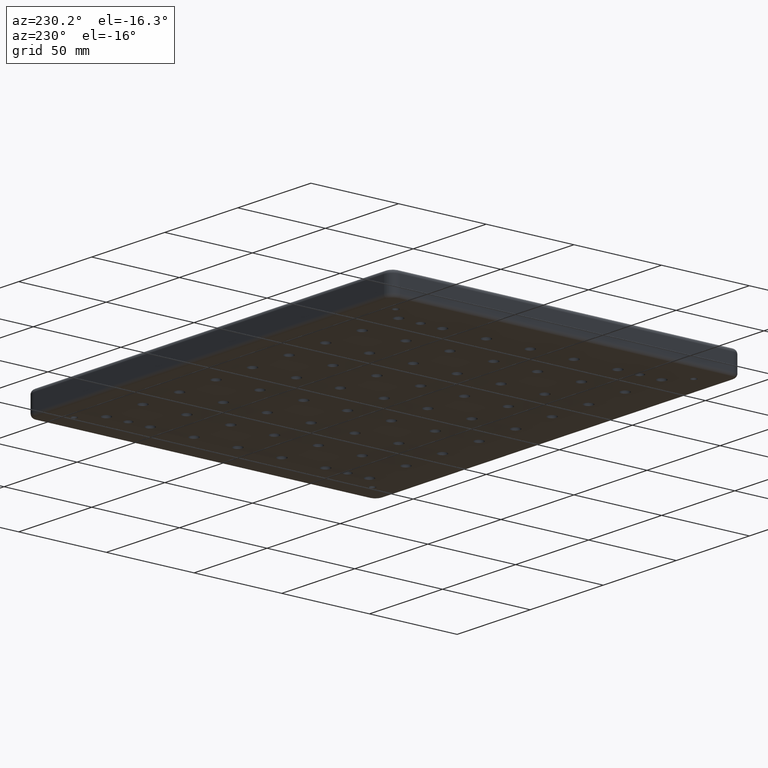
[diagram: clean part render]
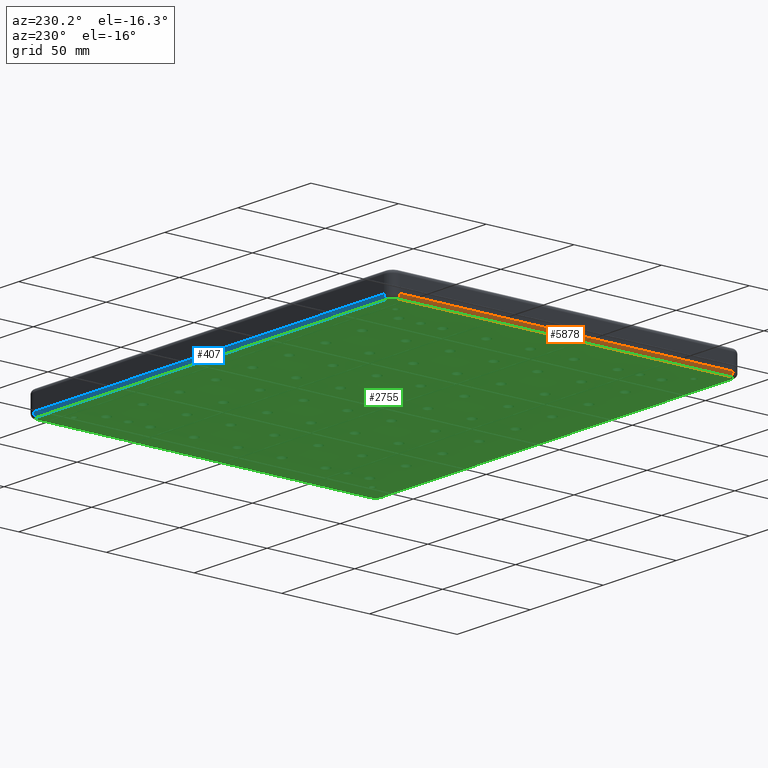
[diagram: same view with three faces highlighted in distinct colors, each labeled with its STEP entity id]
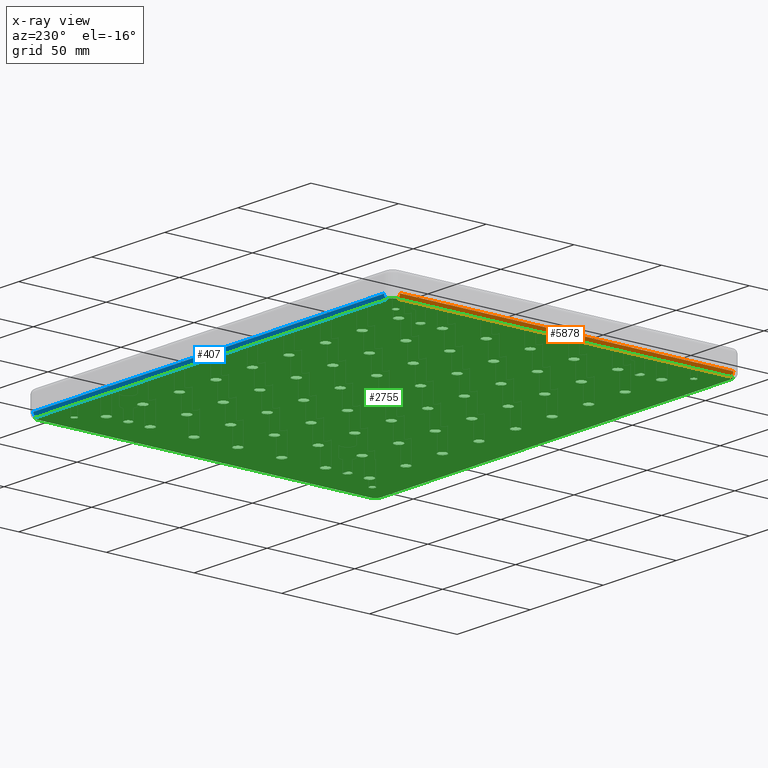
[diagram: x-ray of the same camera — body ghosted, the three highlighted faces saturated]
A machine part, auxiliary view with three faces highlighted in distinct colors.
The next image is the same camera in x-ray (body ghosted, the three faces saturated) — at least one of them is partly hidden behind the body in this view.
Their STEP definitions:

[orange] entity #5878 — the highlighted cylindrical surface (edge-blend (fillet) strip) has radius 2 mm, axis along (0, -1, 0).
#421 = CARTESIAN_POINT ( 'NONE',  ( -125.0000000000000000, -95.00000000000011369, -11.00000000000000000 ) ) ;
#540 = DIRECTION ( 'NONE',  ( 0.000000000000000000, 1.000000000000000000, 0.000000000000000000 ) ) ;
#826 = CARTESIAN_POINT ( 'NONE',  ( -123.0000000000000000, 95.00000000000011369, -13.00000000000000000 ) ) ;
#958 = VECTOR ( 'NONE', #3816, 1000.000000000000000 ) ;
#1067 = DIRECTION ( 'NONE',  ( 0.000000000000000000, 0.000000000000000000, -1.000000000000000000 ) ) ;
#1149 = EDGE_CURVE ( 'NONE', #4578, #2797, #5164, .T. ) ;
#1463 = DIRECTION ( 'NONE',  ( 0.000000000000000000, -1.000000000000000000, 0.000000000000000000 ) ) ;
#1552 = EDGE_CURVE ( 'NONE', #2014, #4578, #4270, .T. ) ;
#1553 = DIRECTION ( 'NONE',  ( 0.000000000000000000, -1.000000000000000000, 0.000000000000000000 ) ) ;
#1582 = CYLINDRICAL_SURFACE ( 'NONE', #4738, 2.000000000000000000 ) ;
#1818 = VECTOR ( 'NONE', #1463, 1000.000000000000000 ) ;
#1838 = ORIENTED_EDGE ( 'NONE', *, *, #5227, .F. ) ;
#2014 = VERTEX_POINT ( 'NONE', #2223 ) ;
#2223 = CARTESIAN_POINT ( 'NONE',  ( -123.0000000000000000, -95.00000000000011369, -13.00000000000000000 ) ) ;
#2266 = CARTESIAN_POINT ( 'NONE',  ( -125.0000000000000000, -95.00000000000011369, -11.00000000000000000 ) ) ;
#2393 = AXIS2_PLACEMENT_3D ( 'NONE', #3767, #540, #2960 ) ;
#2616 = ORIENTED_EDGE ( 'NONE', *, *, #4460, .T. ) ;
#2797 = VERTEX_POINT ( 'NONE', #3608 ) ;
#2908 = ORIENTED_EDGE ( 'NONE', *, *, #1552, .F. ) ;
#2960 = DIRECTION ( 'NONE',  ( 0.000000000000000000, 0.000000000000000000, 1.000000000000000000 ) ) ;
#3342 = AXIS2_PLACEMENT_3D ( 'NONE', #5958, #5990, #4524 ) ;
#3608 = CARTESIAN_POINT ( 'NONE',  ( -125.0000000000000000, 95.00000000000011369, -11.00000000000000000 ) ) ;
#3767 = CARTESIAN_POINT ( 'NONE',  ( -123.0000000000000000, 95.00000000000011369, -11.00000000000000000 ) ) ;
#3816 = DIRECTION ( 'NONE',  ( -0.000000000000000000, 1.000000000000000000, -0.000000000000000000 ) ) ;
#4270 = LINE ( 'NONE', #826, #958 ) ;
#4460 = EDGE_CURVE ( 'NONE', #2014, #6258, #5586, .T. ) ;
#4524 = DIRECTION ( 'NONE',  ( 0.000000000000000000, 0.000000000000000000, 1.000000000000000000 ) ) ;
#4564 = FACE_OUTER_BOUND ( 'NONE', #5631, .T. ) ;
#4578 = VERTEX_POINT ( 'NONE', #5131 ) ;
#4738 = AXIS2_PLACEMENT_3D ( 'NONE', #5461, #1553, #1067 ) ;
#5131 = CARTESIAN_POINT ( 'NONE',  ( -123.0000000000000000, 95.00000000000011369, -13.00000000000000000 ) ) ;
#5164 = CIRCLE ( 'NONE', #2393, 2.000000000000000000 ) ;
#5227 = EDGE_CURVE ( 'NONE', #2797, #6258, #5842, .T. ) ;
#5461 = CARTESIAN_POINT ( 'NONE',  ( -123.0000000000000000, -95.00000000000011369, -11.00000000000000000 ) ) ;
#5586 = CIRCLE ( 'NONE', #3342, 2.000000000000000000 ) ;
#5631 = EDGE_LOOP ( 'NONE', ( #2616, #1838, #5696, #2908 ) ) ;
#5696 = ORIENTED_EDGE ( 'NONE', *, *, #1149, .F. ) ;
#5842 = LINE ( 'NONE', #421, #1818 ) ;
#5878 = ADVANCED_FACE ( 'NONE', ( #4564 ), #1582, .T. ) ;
#5958 = CARTESIAN_POINT ( 'NONE',  ( -123.0000000000000000, -95.00000000000011369, -11.00000000000000000 ) ) ;
#5990 = DIRECTION ( 'NONE',  ( 0.000000000000000000, 1.000000000000000000, 0.000000000000000000 ) ) ;
#6258 = VERTEX_POINT ( 'NONE', #2266 ) ;

[blue] entity #407 — the highlighted cylindrical surface (edge-blend (fillet) strip) has radius 2 mm, axis along (-1, -0, 0).
#83 = ORIENTED_EDGE ( 'NONE', *, *, #1226, .T. ) ;
#349 = ORIENTED_EDGE ( 'NONE', *, *, #2693, .F. ) ;
#388 = LINE ( 'NONE', #2835, #2114 ) ;
#407 = ADVANCED_FACE ( 'NONE', ( #4644 ), #5574, .T. ) ;
#625 = DIRECTION ( 'NONE',  ( -1.000000000000000000, -1.156482317317870492E-16, 0.000000000000000000 ) ) ;
#646 = EDGE_CURVE ( 'NONE', #5261, #3094, #4228, .T. ) ;
#900 = CARTESIAN_POINT ( 'NONE',  ( -120.0000000000001137, 100.0000000000000000, -11.00000000000000000 ) ) ;
#1003 = CARTESIAN_POINT ( 'NONE',  ( -120.0000000000001137, 98.00000000000000000, -11.00000000000000000 ) ) ;
#1226 = EDGE_CURVE ( 'NONE', #1776, #2598, #3930, .T. ) ;
#1776 = VERTEX_POINT ( 'NONE', #3151 ) ;
#1845 = CARTESIAN_POINT ( 'NONE',  ( -120.0000000000001137, 100.0000000000000000, -11.00000000000000000 ) ) ;
#1874 = DIRECTION ( 'NONE',  ( 1.000000000000000000, 1.156482317317870492E-16, -0.000000000000000000 ) ) ;
#1999 = VECTOR ( 'NONE', #4453, 1000.000000000000000 ) ;
#2010 = AXIS2_PLACEMENT_3D ( 'NONE', #3150, #625, #2150 ) ;
#2059 = DIRECTION ( 'NONE',  ( 1.000000000000000000, -0.000000000000000000, 0.000000000000000000 ) ) ;
#2098 = EDGE_CURVE ( 'NONE', #3094, #2598, #4002, .T. ) ;
#2114 = VECTOR ( 'NONE', #1874, 1000.000000000000000 ) ;
#2150 = DIRECTION ( 'NONE',  ( 0.000000000000000000, -1.000000000000000000, 0.000000000000000000 ) ) ;
#2284 = AXIS2_PLACEMENT_3D ( 'NONE', #3868, #3239, #5156 ) ;
#2598 = VERTEX_POINT ( 'NONE', #1845 ) ;
#2693 = EDGE_CURVE ( 'NONE', #1776, #5261, #388, .T. ) ;
#2835 = CARTESIAN_POINT ( 'NONE',  ( -120.0000000000001137, 98.00000000000000000, -13.00000000000000000 ) ) ;
#2845 = CARTESIAN_POINT ( 'NONE',  ( 120.0000000000001137, 98.00000000000002842, -13.00000000000000000 ) ) ;
#3094 = VERTEX_POINT ( 'NONE', #3853 ) ;
#3150 = CARTESIAN_POINT ( 'NONE',  ( -120.0000000000001137, 98.00000000000000000, -11.00000000000000000 ) ) ;
#3151 = CARTESIAN_POINT ( 'NONE',  ( -120.0000000000001137, 98.00000000000000000, -13.00000000000000000 ) ) ;
#3239 = DIRECTION ( 'NONE',  ( 1.000000000000000000, -0.000000000000000000, 0.000000000000000000 ) ) ;
#3728 = AXIS2_PLACEMENT_3D ( 'NONE', #1003, #2059, #3918 ) ;
#3853 = CARTESIAN_POINT ( 'NONE',  ( 120.0000000000001137, 100.0000000000000284, -11.00000000000000000 ) ) ;
#3868 = CARTESIAN_POINT ( 'NONE',  ( 120.0000000000001137, 98.00000000000002842, -11.00000000000000000 ) ) ;
#3889 = ORIENTED_EDGE ( 'NONE', *, *, #2098, .F. ) ;
#3918 = DIRECTION ( 'NONE',  ( 0.000000000000000000, 0.000000000000000000, -1.000000000000000000 ) ) ;
#3930 = CIRCLE ( 'NONE', #3728, 2.000000000000000000 ) ;
#4002 = LINE ( 'NONE', #900, #1999 ) ;
#4228 = CIRCLE ( 'NONE', #2284, 2.000000000000000000 ) ;
#4453 = DIRECTION ( 'NONE',  ( -1.000000000000000000, -1.156482317317870492E-16, 0.000000000000000000 ) ) ;
#4522 = EDGE_LOOP ( 'NONE', ( #83, #3889, #5799, #349 ) ) ;
#4644 = FACE_OUTER_BOUND ( 'NONE', #4522, .T. ) ;
#5156 = DIRECTION ( 'NONE',  ( 0.000000000000000000, 0.000000000000000000, -1.000000000000000000 ) ) ;
#5261 = VERTEX_POINT ( 'NONE', #2845 ) ;
#5574 = CYLINDRICAL_SURFACE ( 'NONE', #2010, 2.000000000000001776 ) ;
#5799 = ORIENTED_EDGE ( 'NONE', *, *, #646, .F. ) ;

[green] entity #2755 — the highlighted planar face has unit normal (-0, 0, -1).
#1 = CARTESIAN_POINT ( 'NONE',  ( -27.49999999999999645, -75.00000000000001421, -13.00000000000000000 ) ) ;
#5 = CARTESIAN_POINT ( 'NONE',  ( -22.49999999999999289, 75.00000000000001421, -13.00000000000000000 ) ) ;
#9 = VERTEX_POINT ( 'NONE', #634 ) ;
#13 = EDGE_LOOP ( 'NONE', ( #6069, #4107 ) ) ;
#19 = CIRCLE ( 'NONE', #841, 2.500000000000002220 ) ;
#20 = CARTESIAN_POINT ( 'NONE',  ( 75.00000000000001421, -50.00000000000002842, -13.00000000000000000 ) ) ;
#21 = DIRECTION ( 'NONE',  ( 1.000000000000000000, 0.000000000000000000, 0.000000000000000000 ) ) ;
#22 = CARTESIAN_POINT ( 'NONE',  ( -27.50000000000000355, 24.99999999999998224, -13.00000000000000000 ) ) ;
#31 = DIRECTION ( 'NONE',  ( 1.000000000000000000, 0.000000000000000000, 0.000000000000000000 ) ) ;
#37 = EDGE_CURVE ( 'NONE', #3319, #5502, #770, .T. ) ;
#40 = DIRECTION ( 'NONE',  ( 1.000000000000000000, 0.000000000000000000, 0.000000000000000000 ) ) ;
#42 = AXIS2_PLACEMENT_3D ( 'NONE', #530, #5885, #5448 ) ;
#45 = AXIS2_PLACEMENT_3D ( 'NONE', #4696, #768, #830 ) ;
#50 = CARTESIAN_POINT ( 'NONE',  ( 100.0000000000000000, -75.00000000000004263, -13.00000000000000000 ) ) ;
#51 = CIRCLE ( 'NONE', #3549, 2.500000000000002220 ) ;
#55 = AXIS2_PLACEMENT_3D ( 'NONE', #893, #1859, #2788 ) ;
#56 = AXIS2_PLACEMENT_3D ( 'NONE', #3570, #5098, #1093 ) ;
#59 = EDGE_CURVE ( 'NONE', #6351, #5654, #4362, .T. ) ;
#61 = CARTESIAN_POINT ( 'NONE',  ( -109.9999999999999858, 85.00000000000002842, -13.00000000000000000 ) ) ;
#65 = AXIS2_PLACEMENT_3D ( 'NONE', #61, #4817, #3405 ) ;
#68 = FACE_BOUND ( 'NONE', #3525, .T. ) ;
#73 = CIRCLE ( 'NONE', #5612, 2.500000000000002220 ) ;
#75 = CARTESIAN_POINT ( 'NONE',  ( 24.99999999999999289, 49.99999999999997158, -13.00000000000000000 ) ) ;
#76 = EDGE_LOOP ( 'NONE', ( #1968, #4066 ) ) ;
#82 = VERTEX_POINT ( 'NONE', #5710 ) ;
#85 = DIRECTION ( 'NONE',  ( 1.000000000000000000, 0.000000000000000000, 0.000000000000000000 ) ) ;
#90 = CARTESIAN_POINT ( 'NONE',  ( 50.00000000000001421, -75.00000000000002842, -13.00000000000000000 ) ) ;
#96 = CARTESIAN_POINT ( 'NONE',  ( 27.49999999999999645, -25.00000000000002487, -13.00000000000000000 ) ) ;
#97 = DIRECTION ( 'NONE',  ( 1.000000000000000000, 0.000000000000000000, 0.000000000000000000 ) ) ;
#98 = CARTESIAN_POINT ( 'NONE',  ( 52.50000000000002132, -25.00000000000002487, -13.00000000000000000 ) ) ;
#99 = EDGE_CURVE ( 'NONE', #4010, #487, #5590, .T. ) ;
#106 = CARTESIAN_POINT ( 'NONE',  ( 52.50000000000002132, 49.99999999999997158, -13.00000000000000000 ) ) ;
#112 = CARTESIAN_POINT ( 'NONE',  ( 77.50000000000001421, -50.00000000000002842, -13.00000000000000000 ) ) ;
#119 = DIRECTION ( 'NONE',  ( -0.000000000000000000, -0.000000000000000000, 1.000000000000000000 ) ) ;
#126 = FACE_BOUND ( 'NONE', #908, .T. ) ;
#129 = VERTEX_POINT ( 'NONE', #5763 ) ;
#130 = CARTESIAN_POINT ( 'NONE',  ( 0.000000000000000000, -50.00000000000002132, -13.00000000000000000 ) ) ;
#135 = EDGE_CURVE ( 'NONE', #4246, #4485, #6305, .T. ) ;
#136 = DIRECTION ( 'NONE',  ( 1.000000000000000000, 0.000000000000000000, 0.000000000000000000 ) ) ;
#145 = CIRCLE ( 'NONE', #3648, 2.500000000000002220 ) ;
#148 = DIRECTION ( 'NONE',  ( 1.000000000000000000, 0.000000000000000000, 0.000000000000000000 ) ) ;
#149 = VERTEX_POINT ( 'NONE', #379 ) ;
#150 = CIRCLE ( 'NONE', #655, 2.500000000000002220 ) ;
#154 = AXIS2_PLACEMENT_3D ( 'NONE', #2342, #1320, #797 ) ;
#155 = CIRCLE ( 'NONE', #3751, 2.500000000000002220 ) ;
#156 = DIRECTION ( 'NONE',  ( 1.000000000000000000, 0.000000000000000000, 0.000000000000000000 ) ) ;
#160 = FACE_BOUND ( 'NONE', #548, .T. ) ;
#162 = AXIS2_PLACEMENT_3D ( 'NONE', #2555, #1589, #5110 ) ;
#168 = DIRECTION ( 'NONE',  ( 1.000000000000000000, 0.000000000000000000, 0.000000000000000000 ) ) ;
#172 = DIRECTION ( 'NONE',  ( -0.000000000000000000, -0.000000000000000000, 1.000000000000000000 ) ) ;
#175 = EDGE_CURVE ( 'NONE', #6300, #4413, #661, .T. ) ;
#176 = EDGE_CURVE ( 'NONE', #4553, #4808, #4055, .T. ) ;
#177 = ORIENTED_EDGE ( 'NONE', *, *, #3485, .T. ) ;
#180 = DIRECTION ( 'NONE',  ( 1.000000000000000000, 0.000000000000000000, 0.000000000000000000 ) ) ;
#186 = ORIENTED_EDGE ( 'NONE', *, *, #1552, .T. ) ;
#187 = DIRECTION ( 'NONE',  ( 1.000000000000000000, 0.000000000000000000, 0.000000000000000000 ) ) ;
#191 = CARTESIAN_POINT ( 'NONE',  ( 24.99999999999999289, -1.387778780781445676E-14, -13.00000000000000000 ) ) ;
#197 = EDGE_CURVE ( 'NONE', #4923, #5104, #3952, .T. ) ;
#200 = VERTEX_POINT ( 'NONE', #3723 ) ;
#203 = EDGE_CURVE ( 'NONE', #5654, #6351, #458, .T. ) ;
#208 = CIRCLE ( 'NONE', #5459, 2.500000000000002220 ) ;
#211 = EDGE_CURVE ( 'NONE', #1994, #6165, #1491, .T. ) ;
#213 = CARTESIAN_POINT ( 'NONE',  ( 108.3500000000000938, 85.00000000000002842, -13.00000000000000000 ) ) ;
#217 = CARTESIAN_POINT ( 'NONE',  ( -2.500000000000002220, 49.99999999999997158, -13.00000000000000000 ) ) ;
#226 = DIRECTION ( 'NONE',  ( 1.000000000000000000, 0.000000000000000000, 0.000000000000000000 ) ) ;
#238 = CARTESIAN_POINT ( 'NONE',  ( -100.0000000000000000, 0.000000000000000000, -13.00000000000000000 ) ) ;
#242 = CARTESIAN_POINT ( 'NONE',  ( 110.0000000000000853, -85.00000000000000000, -13.00000000000000000 ) ) ;
#248 = AXIS2_PLACEMENT_3D ( 'NONE', #4616, #1152, #1668 ) ;
#249 = CIRCLE ( 'NONE', #1078, 2.500000000000002220 ) ;
#250 = EDGE_CURVE ( 'NONE', #1556, #2975, #155, .T. ) ;
#257 = CARTESIAN_POINT ( 'NONE',  ( 100.0000000000000000, 74.99999999999998579, -13.00000000000000000 ) ) ;
#259 = EDGE_LOOP ( 'NONE', ( #2955, #6171 ) ) ;
#260 = EDGE_LOOP ( 'NONE', ( #5235, #5076 ) ) ;
#261 = CIRCLE ( 'NONE', #2411, 2.500000000000002220 ) ;
#262 = DIRECTION ( 'NONE',  ( -0.000000000000000000, -0.000000000000000000, 1.000000000000000000 ) ) ;
#267 = CIRCLE ( 'NONE', #3756, 2.500000000000002220 ) ;
#270 = CIRCLE ( 'NONE', #2633, 2.500000000000002220 ) ;
#278 = AXIS2_PLACEMENT_3D ( 'NONE', #2427, #2811, #5411 ) ;
#283 = DIRECTION ( 'NONE',  ( -0.000000000000000000, -0.000000000000000000, 1.000000000000000000 ) ) ;
#285 = ORIENTED_EDGE ( 'NONE', *, *, #175, .T. ) ;
#287 = CARTESIAN_POINT ( 'NONE',  ( 72.50000000000001421, -1.357162610802761731E-14, -13.00000000000000000 ) ) ;
#300 = DIRECTION ( 'NONE',  ( 1.000000000000000000, 0.000000000000000000, 0.000000000000000000 ) ) ;
#302 = CARTESIAN_POINT ( 'NONE',  ( 100.0000000000000853, 62.50000000000001421, -12.99999999999999822 ) ) ;
#305 = ORIENTED_EDGE ( 'NONE', *, *, #5935, .T. ) ;
#315 = CARTESIAN_POINT ( 'NONE',  ( 24.99999999999999289, 24.99999999999998224, -13.00000000000000000 ) ) ;
#316 = ORIENTED_EDGE ( 'NONE', *, *, #2519, .T. ) ;
#322 = DIRECTION ( 'NONE',  ( 1.000000000000000000, 0.000000000000000000, 0.000000000000000000 ) ) ;
#323 = CIRCLE ( 'NONE', #5238, 2.250000000000001776 ) ;
#335 = CIRCLE ( 'NONE', #1065, 2.250000000000001776 ) ;
#338 = DIRECTION ( 'NONE',  ( -0.000000000000000000, -0.000000000000000000, 1.000000000000000000 ) ) ;
#339 = CIRCLE ( 'NONE', #2911, 2.500000000000002220 ) ;
#342 = VERTEX_POINT ( 'NONE', #4839 ) ;
#344 = CARTESIAN_POINT ( 'NONE',  ( -52.50000000000001421, -50.00000000000001421, -13.00000000000000000 ) ) ;
#348 = EDGE_CURVE ( 'NONE', #1238, #1083, #2525, .T. ) ;
#360 = VERTEX_POINT ( 'NONE', #2914 ) ;
#374 = DIRECTION ( 'NONE',  ( -0.000000000000000000, -0.000000000000000000, 1.000000000000000000 ) ) ;
#379 = CARTESIAN_POINT ( 'NONE',  ( 120.0000000000001279, -98.00000000000002842, -13.00000000000000000 ) ) ;
#381 = ORIENTED_EDGE ( 'NONE', *, *, #5922, .T. ) ;
#385 = ORIENTED_EDGE ( 'NONE', *, *, #3697, .T. ) ;
#388 = LINE ( 'NONE', #2835, #2114 ) ;
#393 = EDGE_CURVE ( 'NONE', #4808, #4553, #3040, .T. ) ;
#394 = VERTEX_POINT ( 'NONE', #1151 ) ;
#404 = DIRECTION ( 'NONE',  ( 1.000000000000000000, 0.000000000000000000, 0.000000000000000000 ) ) ;
#411 = DIRECTION ( 'NONE',  ( -0.000000000000000000, -0.000000000000000000, 1.000000000000000000 ) ) ;
#416 = DIRECTION ( 'NONE',  ( 1.000000000000000000, 0.000000000000000000, 0.000000000000000000 ) ) ;
#417 = EDGE_LOOP ( 'NONE', ( #1357, #5790 ) ) ;
#418 = VERTEX_POINT ( 'NONE', #1605 ) ;
#420 = CARTESIAN_POINT ( 'NONE',  ( 0.000000000000000000, 24.99999999999998224, -13.00000000000000000 ) ) ;
#422 = ORIENTED_EDGE ( 'NONE', *, *, #5011, .T. ) ;
#435 = CARTESIAN_POINT ( 'NONE',  ( -50.00000000000000711, 0.000000000000000000, -13.00000000000000000 ) ) ;
#441 = EDGE_CURVE ( 'NONE', #4349, #6288, #3352, .T. ) ;
#444 = FACE_BOUND ( 'NONE', #5278, .T. ) ;
#445 = CARTESIAN_POINT ( 'NONE',  ( 102.5000000000000142, -75.00000000000004263, -13.00000000000000000 ) ) ;
#446 = CIRCLE ( 'NONE', #4045, 2.500000000000002220 ) ;
#452 = DIRECTION ( 'NONE',  ( 1.000000000000000000, 0.000000000000000000, 0.000000000000000000 ) ) ;
#454 = CIRCLE ( 'NONE', #4257, 2.500000000000002220 ) ;
#458 = CIRCLE ( 'NONE', #4256, 2.500000000000002220 ) ;
#463 = CIRCLE ( 'NONE', #5187, 2.500000000000002220 ) ;
#467 = DIRECTION ( 'NONE',  ( -0.000000000000000000, -0.000000000000000000, 1.000000000000000000 ) ) ;
#475 = CARTESIAN_POINT ( 'NONE',  ( 0.000000000000000000, 49.99999999999997158, -13.00000000000000000 ) ) ;
#483 = EDGE_CURVE ( 'NONE', #5104, #4923, #1400, .T. ) ;
#486 = DIRECTION ( 'NONE',  ( -0.000000000000000000, -0.000000000000000000, 1.000000000000000000 ) ) ;
#487 = VERTEX_POINT ( 'NONE', #2628 ) ;
#488 = CARTESIAN_POINT ( 'NONE',  ( -50.00000000000000711, -50.00000000000001421, -13.00000000000000000 ) ) ;
#491 = DIRECTION ( 'NONE',  ( 1.000000000000000000, 0.000000000000000000, 0.000000000000000000 ) ) ;
#496 = ORIENTED_EDGE ( 'NONE', *, *, #4517, .T. ) ;
#503 = VERTEX_POINT ( 'NONE', #5542 ) ;
#504 = DIRECTION ( 'NONE',  ( 1.000000000000000000, 0.000000000000000000, 0.000000000000000000 ) ) ;
#505 = CARTESIAN_POINT ( 'NONE',  ( -120.0000000000001137, -95.00000000000011369, -13.00000000000000000 ) ) ;
#510 = FACE_BOUND ( 'NONE', #4093, .T. ) ;
#514 = DIRECTION ( 'NONE',  ( 1.000000000000000000, 0.000000000000000000, 0.000000000000000000 ) ) ;
#516 = ORIENTED_EDGE ( 'NONE', *, *, #4414, .T. ) ;
#528 = CARTESIAN_POINT ( 'NONE',  ( 75.00000000000001421, 24.99999999999998224, -13.00000000000000000 ) ) ;
#529 = CARTESIAN_POINT ( 'NONE',  ( 97.75000000000008527, 62.50000000000001421, -12.99999999999999822 ) ) ;
#530 = CARTESIAN_POINT ( 'NONE',  ( -50.00000000000000711, 49.99999999999998579, -13.00000000000000000 ) ) ;
#534 = DIRECTION ( 'NONE',  ( 1.000000000000000000, 0.000000000000000000, 0.000000000000000000 ) ) ;
#535 = EDGE_LOOP ( 'NONE', ( #2824, #3783 ) ) ;
#536 = DIRECTION ( 'NONE',  ( -0.000000000000000000, -0.000000000000000000, 1.000000000000000000 ) ) ;
#547 = DIRECTION ( 'NONE',  ( -0.000000000000000000, -0.000000000000000000, 1.000000000000000000 ) ) ;
#548 = EDGE_LOOP ( 'NONE', ( #3725, #422 ) ) ;
#554 = DIRECTION ( 'NONE',  ( -0.000000000000000000, -0.000000000000000000, 1.000000000000000000 ) ) ;
#557 = ORIENTED_EDGE ( 'NONE', *, *, #4091, .T. ) ;
#558 = CIRCLE ( 'NONE', #4152, 2.500000000000002220 ) ;
#559 = VERTEX_POINT ( 'NONE', #3832 ) ;
#563 = CARTESIAN_POINT ( 'NONE',  ( 72.50000000000001421, -50.00000000000002842, -13.00000000000000000 ) ) ;
#566 = DIRECTION ( 'NONE',  ( 1.000000000000000000, 0.000000000000000000, 0.000000000000000000 ) ) ;
#568 = AXIS2_PLACEMENT_3D ( 'NONE', #2853, #2246, #3340 ) ;
#569 = VERTEX_POINT ( 'NONE', #5367 ) ;
#571 = CARTESIAN_POINT ( 'NONE',  ( 100.0000000000000000, -50.00000000000002842, -13.00000000000000000 ) ) ;
#573 = DIRECTION ( 'NONE',  ( -0.000000000000000000, -0.000000000000000000, -1.000000000000000000 ) ) ;
#574 = CIRCLE ( 'NONE', #4888, 2.500000000000002220 ) ;
#578 = CIRCLE ( 'NONE', #1823, 2.250000000000001776 ) ;
#580 = AXIS2_PLACEMENT_3D ( 'NONE', #2395, #1888, #4392 ) ;
#586 = DIRECTION ( 'NONE',  ( -0.000000000000000000, -0.000000000000000000, 1.000000000000000000 ) ) ;
#590 = ORIENTED_EDGE ( 'NONE', *, *, #4499, .T. ) ;
#601 = DIRECTION ( 'NONE',  ( -0.000000000000000000, -0.000000000000000000, 1.000000000000000000 ) ) ;
#603 = DIRECTION ( 'NONE',  ( 1.000000000000000000, 0.000000000000000000, 0.000000000000000000 ) ) ;
#606 = EDGE_CURVE ( 'NONE', #5090, #2842, #2088, .T. ) ;
#609 = FACE_BOUND ( 'NONE', #1974, .T. ) ;
#618 = VERTEX_POINT ( 'NONE', #907 ) ;
#622 = EDGE_CURVE ( 'NONE', #4931, #4884, #3218, .T. ) ;
#624 = CARTESIAN_POINT ( 'NONE',  ( -72.50000000000001421, 49.99999999999998579, -13.00000000000000000 ) ) ;
#626 = CIRCLE ( 'NONE', #1049, 2.250000000000001776 ) ;
#628 = EDGE_LOOP ( 'NONE', ( #3668, #3592 ) ) ;
#630 = CARTESIAN_POINT ( 'NONE',  ( 77.50000000000001421, -1.387778780781445676E-14, -13.00000000000000000 ) ) ;
#634 = CARTESIAN_POINT ( 'NONE',  ( 77.50000000000001421, 74.99999999999998579, -13.00000000000000000 ) ) ;
#637 = CIRCLE ( 'NONE', #3008, 2.500000000000002220 ) ;
#645 = ORIENTED_EDGE ( 'NONE', *, *, #3634, .T. ) ;
#647 = CARTESIAN_POINT ( 'NONE',  ( 24.99999999999999289, -25.00000000000002487, -13.00000000000000000 ) ) ;
#648 = VERTEX_POINT ( 'NONE', #5192 ) ;
#654 = CARTESIAN_POINT ( 'NONE',  ( 50.00000000000001421, -75.00000000000002842, -13.00000000000000000 ) ) ;
#655 = AXIS2_PLACEMENT_3D ( 'NONE', #5540, #1663, #3623 ) ;
#661 = CIRCLE ( 'NONE', #1807, 2.500000000000002220 ) ;
#663 = CARTESIAN_POINT ( 'NONE',  ( 50.00000000000001421, 24.99999999999998224, -13.00000000000000000 ) ) ;
#664 = CIRCLE ( 'NONE', #1702, 2.500000000000002220 ) ;
#667 = AXIS2_PLACEMENT_3D ( 'NONE', #242, #4035, #3081 ) ;
#669 = DIRECTION ( 'NONE',  ( 1.000000000000000000, 0.000000000000000000, 0.000000000000000000 ) ) ;
#672 = CIRCLE ( 'NONE', #1917, 2.500000000000002220 ) ;
#678 = CARTESIAN_POINT ( 'NONE',  ( -72.50000000000001421, -75.00000000000001421, -13.00000000000000000 ) ) ;
#679 = EDGE_CURVE ( 'NONE', #2296, #5289, #4542, .T. ) ;
#686 = AXIS2_PLACEMENT_3D ( 'NONE', #3928, #1462, #491 ) ;
#690 = EDGE_LOOP ( 'NONE', ( #5523, #2242 ) ) ;
#691 = AXIS2_PLACEMENT_3D ( 'NONE', #420, #3460, #2387 ) ;
#694 = CARTESIAN_POINT ( 'NONE',  ( -52.50000000000001421, 49.99999999999998579, -13.00000000000000000 ) ) ;
#697 = ORIENTED_EDGE ( 'NONE', *, *, #6023, .T. ) ;
#700 = EDGE_LOOP ( 'NONE', ( #5820, #4867 ) ) ;
#704 = FACE_BOUND ( 'NONE', #2234, .T. ) ;
#726 = ORIENTED_EDGE ( 'NONE', *, *, #6245, .T. ) ;
#728 = CARTESIAN_POINT ( 'NONE',  ( -50.00000000000000000, -75.00000000000001421, -13.00000000000000000 ) ) ;
#731 = VERTEX_POINT ( 'NONE', #3515 ) ;
#732 = CARTESIAN_POINT ( 'NONE',  ( -120.0000000000001137, 95.00000000000011369, -13.00000000000000000 ) ) ;
#740 = EDGE_LOOP ( 'NONE', ( #4999, #3582 ) ) ;
#743 = AXIS2_PLACEMENT_3D ( 'NONE', #3095, #547, #514 ) ;
#747 = ORIENTED_EDGE ( 'NONE', *, *, #5125, .T. ) ;
#748 = CIRCLE ( 'NONE', #2289, 2.500000000000002220 ) ;
#749 = DIRECTION ( 'NONE',  ( -0.000000000000000000, -0.000000000000000000, 1.000000000000000000 ) ) ;
#755 = EDGE_CURVE ( 'NONE', #3360, #4743, #5256, .T. ) ;
#763 = AXIS2_PLACEMENT_3D ( 'NONE', #315, #2252, #2279 ) ;
#764 = EDGE_CURVE ( 'NONE', #82, #5050, #2494, .T. ) ;
#768 = DIRECTION ( 'NONE',  ( -0.000000000000000000, -0.000000000000000000, 1.000000000000000000 ) ) ;
#770 = CIRCLE ( 'NONE', #2413, 2.500000000000002220 ) ;
#781 = AXIS2_PLACEMENT_3D ( 'NONE', #2112, #4547, #4968 ) ;
#783 = CIRCLE ( 'NONE', #2841, 2.500000000000002220 ) ;
#784 = VERTEX_POINT ( 'NONE', #1 ) ;
#786 = AXIS2_PLACEMENT_3D ( 'NONE', #2102, #5441, #2556 ) ;
#787 = CARTESIAN_POINT ( 'NONE',  ( 52.50000000000002132, -1.387778780781445676E-14, -13.00000000000000000 ) ) ;
#789 = AXIS2_PLACEMENT_3D ( 'NONE', #846, #5186, #300 ) ;
#791 = DIRECTION ( 'NONE',  ( 1.000000000000000000, 0.000000000000000000, 0.000000000000000000 ) ) ;
#793 = VERTEX_POINT ( 'NONE', #3029 ) ;
#795 = ORIENTED_EDGE ( 'NONE', *, *, #808, .T. ) ;
#797 = DIRECTION ( 'NONE',  ( 1.000000000000000000, 0.000000000000000000, 0.000000000000000000 ) ) ;
#799 = DIRECTION ( 'NONE',  ( 1.000000000000000000, 0.000000000000000000, 0.000000000000000000 ) ) ;
#800 = CARTESIAN_POINT ( 'NONE',  ( -24.99999999999999289, -75.00000000000001421, -13.00000000000000000 ) ) ;
#801 = VERTEX_POINT ( 'NONE', #3488 ) ;
#807 = ORIENTED_EDGE ( 'NONE', *, *, #3704, .T. ) ;
#808 = EDGE_CURVE ( 'NONE', #2843, #4078, #4955, .T. ) ;
#809 = CARTESIAN_POINT ( 'NONE',  ( 100.0000000000000000, 49.99999999999997158, -13.00000000000000000 ) ) ;
#810 = DIRECTION ( 'NONE',  ( 1.000000000000000000, 0.000000000000000000, 0.000000000000000000 ) ) ;
#812 = CARTESIAN_POINT ( 'NONE',  ( -50.00000000000000000, -75.00000000000001421, -13.00000000000000000 ) ) ;
#822 = CARTESIAN_POINT ( 'NONE',  ( 22.49999999999999289, 24.99999999999998224, -13.00000000000000000 ) ) ;
#824 = CARTESIAN_POINT ( 'NONE',  ( -27.50000000000000355, -25.00000000000001776, -13.00000000000000000 ) ) ;
#826 = CARTESIAN_POINT ( 'NONE',  ( -123.0000000000000000, 95.00000000000011369, -13.00000000000000000 ) ) ;
#830 = DIRECTION ( 'NONE',  ( 1.000000000000000000, 0.000000000000000000, 0.000000000000000000 ) ) ;
#838 = EDGE_CURVE ( 'NONE', #3265, #1691, #6175, .T. ) ;
#841 = AXIS2_PLACEMENT_3D ( 'NONE', #5222, #4614, #3656 ) ;
#844 = EDGE_CURVE ( 'NONE', #3971, #801, #637, .T. ) ;
#846 = CARTESIAN_POINT ( 'NONE',  ( 100.0000000000000000, 49.99999999999997158, -13.00000000000000000 ) ) ;
#869 = AXIS2_PLACEMENT_3D ( 'NONE', #1292, #5679, #1387 ) ;
#871 = AXIS2_PLACEMENT_3D ( 'NONE', #5201, #4691, #799 ) ;
#874 = EDGE_CURVE ( 'NONE', #801, #3971, #2896, .T. ) ;
#877 = EDGE_LOOP ( 'NONE', ( #6081, #2364 ) ) ;
#878 = CIRCLE ( 'NONE', #4879, 2.500000000000002220 ) ;
#879 = ORIENTED_EDGE ( 'NONE', *, *, #6208, .T. ) ;
#884 = CIRCLE ( 'NONE', #65, 1.649999999999998579 ) ;
#893 = CARTESIAN_POINT ( 'NONE',  ( 100.0000000000000000, -2.775557561562891351E-14, -13.00000000000000000 ) ) ;
#903 = CARTESIAN_POINT ( 'NONE',  ( -77.50000000000001421, -75.00000000000001421, -13.00000000000000000 ) ) ;
#907 = CARTESIAN_POINT ( 'NONE',  ( 22.49999999999999289, 49.99999999999997158, -13.00000000000000000 ) ) ;
#908 = EDGE_LOOP ( 'NONE', ( #4953, #1362 ) ) ;
#921 = CARTESIAN_POINT ( 'NONE',  ( -102.5000000000000142, -50.00000000000000711, -13.00000000000000000 ) ) ;
#926 = EDGE_CURVE ( 'NONE', #2442, #3016, #5471, .T. ) ;
#930 = FACE_BOUND ( 'NONE', #4405, .T. ) ;
#932 = ORIENTED_EDGE ( 'NONE', *, *, #3168, .T. ) ;
#934 = DIRECTION ( 'NONE',  ( 1.000000000000000000, 0.000000000000000000, 0.000000000000000000 ) ) ;
#940 = DIRECTION ( 'NONE',  ( -0.000000000000000000, -0.000000000000000000, 1.000000000000000000 ) ) ;
#946 = VERTEX_POINT ( 'NONE', #3679 ) ;
#950 = CIRCLE ( 'NONE', #1580, 2.999999999999891642 ) ;
#951 = CARTESIAN_POINT ( 'NONE',  ( 2.500000000000002220, -25.00000000000002487, -13.00000000000000000 ) ) ;
#952 = DIRECTION ( 'NONE',  ( -0.000000000000000000, -0.000000000000000000, 1.000000000000000000 ) ) ;
#958 = VECTOR ( 'NONE', #3816, 1000.000000000000000 ) ;
#957 = CARTESIAN_POINT ( 'NONE',  ( -100.0000000000000000, -50.00000000000000711, -13.00000000000000000 ) ) ;
#961 = EDGE_CURVE ( 'NONE', #9, #4535, #748, .T. ) ;
#965 = FACE_BOUND ( 'NONE', #5937, .T. ) ;
#967 = CIRCLE ( 'NONE', #2299, 2.500000000000002220 ) ;
#979 = CIRCLE ( 'NONE', #4467, 2.500000000000002220 ) ;
#998 = AXIS2_PLACEMENT_3D ( 'NONE', #4540, #172, #4572 ) ;
#1000 = VERTEX_POINT ( 'NONE', #678 ) ;
#1012 = DIRECTION ( 'NONE',  ( 1.000000000000000000, 0.000000000000000000, 0.000000000000000000 ) ) ;
#1014 = CARTESIAN_POINT ( 'NONE',  ( 97.50000000000000000, -25.00000000000002842, -13.00000000000000000 ) ) ;
#1020 = CARTESIAN_POINT ( 'NONE',  ( -22.49999999999999289, -75.00000000000001421, -13.00000000000000000 ) ) ;
#1025 = CARTESIAN_POINT ( 'NONE',  ( 110.0000000000000995, 85.00000000000002842, -13.00000000000000000 ) ) ;
#1028 = CARTESIAN_POINT ( 'NONE',  ( 22.49999999999999289, -1.357162610802761731E-14, -13.00000000000000000 ) ) ;
#1029 = DIRECTION ( 'NONE',  ( -0.000000000000000000, -0.000000000000000000, 1.000000000000000000 ) ) ;
#1034 = FACE_BOUND ( 'NONE', #3030, .T. ) ;
#1049 = AXIS2_PLACEMENT_3D ( 'NONE', #5273, #3865, #5864 ) ;
#1056 = DIRECTION ( 'NONE',  ( -0.000000000000000000, -0.000000000000000000, 1.000000000000000000 ) ) ;
#1057 = CARTESIAN_POINT ( 'NONE',  ( -102.2500000000000142, -62.50000000000001421, -12.99999999999999822 ) ) ;
#1062 = AXIS2_PLACEMENT_3D ( 'NONE', #5626, #262, #5593 ) ;
#1065 = AXIS2_PLACEMENT_3D ( 'NONE', #3020, #2924, #5996 ) ;
#1066 = FACE_BOUND ( 'NONE', #2600, .T. ) ;
#1075 = AXIS2_PLACEMENT_3D ( 'NONE', #5926, #3476, #534 ) ;
#1078 = AXIS2_PLACEMENT_3D ( 'NONE', #2086, #1701, #5578 ) ;
#1083 = VERTEX_POINT ( 'NONE', #4371 ) ;
#1088 = EDGE_CURVE ( 'NONE', #5261, #5635, #950, .T. ) ;
#1091 = CIRCLE ( 'NONE', #2007, 2.500000000000002220 ) ;
#1093 = DIRECTION ( 'NONE',  ( 1.000000000000000000, 0.000000000000000000, 0.000000000000000000 ) ) ;
#1095 = AXIS2_PLACEMENT_3D ( 'NONE', #5037, #5103, #1155 ) ;
#1102 = VERTEX_POINT ( 'NONE', #3890 ) ;
#1108 = DIRECTION ( 'NONE',  ( 1.000000000000000000, 0.000000000000000000, 0.000000000000000000 ) ) ;
#1110 = DIRECTION ( 'NONE',  ( 1.000000000000000000, 0.000000000000000000, 0.000000000000000000 ) ) ;
#1116 = EDGE_LOOP ( 'NONE', ( #4845, #2197 ) ) ;
#1128 = DIRECTION ( 'NONE',  ( 1.000000000000000000, 0.000000000000000000, 0.000000000000000000 ) ) ;
#1129 = DIRECTION ( 'NONE',  ( 1.000000000000000000, 0.000000000000000000, 0.000000000000000000 ) ) ;
#1144 = ORIENTED_EDGE ( 'NONE', *, *, #1429, .T. ) ;
#1151 = CARTESIAN_POINT ( 'NONE',  ( 102.5000000000000142, -25.00000000000002842, -13.00000000000000000 ) ) ;
#1152 = DIRECTION ( 'NONE',  ( -0.000000000000000000, -0.000000000000000000, 1.000000000000000000 ) ) ;
#1155 = DIRECTION ( 'NONE',  ( 1.000000000000000000, 0.000000000000000000, 0.000000000000000000 ) ) ;
#1161 = FACE_BOUND ( 'NONE', #4600, .T. ) ;
#1167 = DIRECTION ( 'NONE',  ( -0.000000000000000000, -0.000000000000000000, 1.000000000000000000 ) ) ;
#1169 = CARTESIAN_POINT ( 'NONE',  ( 97.75000000000008527, -62.50000000000001421, -12.99999999999999822 ) ) ;
#1173 = ORIENTED_EDGE ( 'NONE', *, *, #5438, .T. ) ;
#1180 = CIRCLE ( 'NONE', #763, 2.500000000000002220 ) ;
#1181 = CIRCLE ( 'NONE', #869, 2.250000000000001776 ) ;
#1189 = CARTESIAN_POINT ( 'NONE',  ( -75.00000000000001421, -50.00000000000001421, -13.00000000000000000 ) ) ;
#1192 = CIRCLE ( 'NONE', #1095, 2.500000000000002220 ) ;
#1199 = EDGE_CURVE ( 'NONE', #4947, #1716, #335, .T. ) ;
#1205 = CARTESIAN_POINT ( 'NONE',  ( -25.00000000000000000, 24.99999999999998224, -13.00000000000000000 ) ) ;
#1215 = EDGE_LOOP ( 'NONE', ( #4700, #795 ) ) ;
#1225 = DIRECTION ( 'NONE',  ( 1.000000000000000000, 0.000000000000000000, 0.000000000000000000 ) ) ;
#1229 = FACE_BOUND ( 'NONE', #6272, .T. ) ;
#1232 = VERTEX_POINT ( 'NONE', #5861 ) ;
#1238 = VERTEX_POINT ( 'NONE', #4044 ) ;
#1239 = EDGE_CURVE ( 'NONE', #1083, #1238, #1782, .T. ) ;
#1245 = EDGE_CURVE ( 'NONE', #3491, #784, #5674, .T. ) ;
#1248 = CARTESIAN_POINT ( 'NONE',  ( -2.500000000000002220, 24.99999999999998224, -13.00000000000000000 ) ) ;
#1259 = CARTESIAN_POINT ( 'NONE',  ( 0.000000000000000000, -1.387778780781445676E-14, -13.00000000000000000 ) ) ;
#1266 = EDGE_CURVE ( 'NONE', #5635, #3843, #5398, .T. ) ;
#1267 = CARTESIAN_POINT ( 'NONE',  ( 123.0000000000000000, 95.00000000000014211, -13.00000000000000000 ) ) ;
#1275 = CIRCLE ( 'NONE', #1992, 2.500000000000002220 ) ;
#1278 = ORIENTED_EDGE ( 'NONE', *, *, #3406, .T. ) ;
#1280 = CARTESIAN_POINT ( 'NONE',  ( -22.50000000000000000, 24.99999999999998224, -13.00000000000000000 ) ) ;
#1285 = CIRCLE ( 'NONE', #3949, 2.500000000000002220 ) ;
#1286 = DIRECTION ( 'NONE',  ( -0.000000000000000000, -0.000000000000000000, 1.000000000000000000 ) ) ;
#1292 = CARTESIAN_POINT ( 'NONE',  ( -100.0000000000000000, 62.50000000000001421, -12.99999999999999822 ) ) ;
#1295 = AXIS2_PLACEMENT_3D ( 'NONE', #6184, #2370, #6153 ) ;
#1296 = VERTEX_POINT ( 'NONE', #4501 ) ;
#1297 = VERTEX_POINT ( 'NONE', #96 ) ;
#1298 = CARTESIAN_POINT ( 'NONE',  ( -24.99999999999999289, 75.00000000000001421, -13.00000000000000000 ) ) ;
#1301 = DIRECTION ( 'NONE',  ( -0.000000000000000000, -0.000000000000000000, 1.000000000000000000 ) ) ;
#1311 = CARTESIAN_POINT ( 'NONE',  ( 27.49999999999999645, 49.99999999999997158, -13.00000000000000000 ) ) ;
#1320 = DIRECTION ( 'NONE',  ( -0.000000000000000000, -0.000000000000000000, 1.000000000000000000 ) ) ;
#1323 = EDGE_CURVE ( 'NONE', #2975, #1556, #339, .T. ) ;
#1339 = DIRECTION ( 'NONE',  ( 1.000000000000000000, 0.000000000000000000, 0.000000000000000000 ) ) ;
#1340 = DIRECTION ( 'NONE',  ( 1.000000000000000000, 0.000000000000000000, 0.000000000000000000 ) ) ;
#1344 = VERTEX_POINT ( 'NONE', #217 ) ;
#1348 = AXIS2_PLACEMENT_3D ( 'NONE', #1985, #5326, #404 ) ;
#1351 = DIRECTION ( 'NONE',  ( -1.000000000000000000, 1.156482317317870492E-16, -0.000000000000000000 ) ) ;
#1352 = ORIENTED_EDGE ( 'NONE', *, *, #844, .T. ) ;
#1357 = ORIENTED_EDGE ( 'NONE', *, *, #3821, .T. ) ;
#1362 = ORIENTED_EDGE ( 'NONE', *, *, #4245, .T. ) ;
#1365 = CIRCLE ( 'NONE', #1348, 2.500000000000002220 ) ;
#1385 = AXIS2_PLACEMENT_3D ( 'NONE', #3911, #601, #5890 ) ;
#1387 = DIRECTION ( 'NONE',  ( 1.000000000000000000, 0.000000000000000000, 0.000000000000000000 ) ) ;
#1392 = EDGE_CURVE ( 'NONE', #3927, #2993, #3638, .T. ) ;
#1394 = AXIS2_PLACEMENT_3D ( 'NONE', #5040, #1738, #156 ) ;
#1400 = CIRCLE ( 'NONE', #667, 1.649999999999998579 ) ;
#1416 = CARTESIAN_POINT ( 'NONE',  ( -108.3499999999999943, 85.00000000000002842, -13.00000000000000000 ) ) ;
#1423 = DIRECTION ( 'NONE',  ( -0.000000000000000000, -0.000000000000000000, 1.000000000000000000 ) ) ;
#1427 = FACE_BOUND ( 'NONE', #3970, .T. ) ;
#1428 = CARTESIAN_POINT ( 'NONE',  ( 72.50000000000001421, 49.99999999999997158, -13.00000000000000000 ) ) ;
#1429 = EDGE_CURVE ( 'NONE', #4743, #3360, #4448, .T. ) ;
#1450 = DIRECTION ( 'NONE',  ( 1.000000000000000000, 0.000000000000000000, 0.000000000000000000 ) ) ;
#1451 = ORIENTED_EDGE ( 'NONE', *, *, #2762, .T. ) ;
#1454 = FACE_BOUND ( 'NONE', #700, .T. ) ;
#1461 = ORIENTED_EDGE ( 'NONE', *, *, #4365, .T. ) ;
#1462 = DIRECTION ( 'NONE',  ( -0.000000000000000000, -0.000000000000000000, 1.000000000000000000 ) ) ;
#1466 = ORIENTED_EDGE ( 'NONE', *, *, #3484, .T. ) ;
#1467 = EDGE_CURVE ( 'NONE', #149, #129, #3789, .T. ) ;
#1469 = AXIS2_PLACEMENT_3D ( 'NONE', #6266, #1878, #4196 ) ;
#1470 = CARTESIAN_POINT ( 'NONE',  ( 75.00000000000001421, -50.00000000000002842, -13.00000000000000000 ) ) ;
#1474 = CARTESIAN_POINT ( 'NONE',  ( 24.99999999999999289, -1.387778780781445676E-14, -13.00000000000000000 ) ) ;
#1476 = EDGE_CURVE ( 'NONE', #784, #3491, #5866, .T. ) ;
#1482 = EDGE_LOOP ( 'NONE', ( #4683, #5038, #4225, #3075, #4511, #3766, #186, #3220 ) ) ;
#1484 = FACE_BOUND ( 'NONE', #5860, .T. ) ;
#1490 = VERTEX_POINT ( 'NONE', #3379 ) ;
#1491 = CIRCLE ( 'NONE', #871, 2.500000000000002220 ) ;
#1492 = DIRECTION ( 'NONE',  ( -0.000000000000000000, -0.000000000000000000, 1.000000000000000000 ) ) ;
#1506 = AXIS2_PLACEMENT_3D ( 'NONE', #2522, #4023, #40 ) ;
#1514 = DIRECTION ( 'NONE',  ( -0.000000000000000000, -0.000000000000000000, 1.000000000000000000 ) ) ;
#1520 = CIRCLE ( 'NONE', #6015, 2.500000000000002220 ) ;
#1521 = EDGE_CURVE ( 'NONE', #559, #5549, #1275, .T. ) ;
#1524 = FACE_BOUND ( 'NONE', #535, .T. ) ;
#1531 = DIRECTION ( 'NONE',  ( 1.000000000000000000, 0.000000000000000000, 0.000000000000000000 ) ) ;
#1532 = ORIENTED_EDGE ( 'NONE', *, *, #483, .T. ) ;
#1544 = DIRECTION ( 'NONE',  ( 1.000000000000000000, 0.000000000000000000, 0.000000000000000000 ) ) ;
#1548 = CARTESIAN_POINT ( 'NONE',  ( -47.50000000000000711, 49.99999999999998579, -13.00000000000000000 ) ) ;
#1551 = FACE_BOUND ( 'NONE', #6275, .T. ) ;
#1552 = EDGE_CURVE ( 'NONE', #2014, #4578, #4270, .T. ) ;
#1556 = VERTEX_POINT ( 'NONE', #5798 ) ;
#1561 = DIRECTION ( 'NONE',  ( -0.000000000000000000, -0.000000000000000000, 1.000000000000000000 ) ) ;
#1568 = DIRECTION ( 'NONE',  ( -0.000000000000000000, -0.000000000000000000, 1.000000000000000000 ) ) ;
#1575 = DIRECTION ( 'NONE',  ( -0.000000000000000000, -0.000000000000000000, 1.000000000000000000 ) ) ;
#1579 = CARTESIAN_POINT ( 'NONE',  ( -25.00000000000000000, -50.00000000000001421, -13.00000000000000000 ) ) ;
#1580 = AXIS2_PLACEMENT_3D ( 'NONE', #5268, #1844, #6327 ) ;
#1584 = AXIS2_PLACEMENT_3D ( 'NONE', #4622, #5133, #3606 ) ;
#1587 = DIRECTION ( 'NONE',  ( -0.000000000000000000, -0.000000000000000000, 1.000000000000000000 ) ) ;
#1589 = DIRECTION ( 'NONE',  ( -0.000000000000000000, -0.000000000000000000, 1.000000000000000000 ) ) ;
#1590 = CARTESIAN_POINT ( 'NONE',  ( -25.00000000000000000, -25.00000000000001776, -13.00000000000000000 ) ) ;
#1591 = CIRCLE ( 'NONE', #4562, 2.500000000000002220 ) ;
#1596 = ORIENTED_EDGE ( 'NONE', *, *, #176, .T. ) ;
#1605 = CARTESIAN_POINT ( 'NONE',  ( -102.5000000000000142, 49.99999999999999289, -13.00000000000000000 ) ) ;
#1609 = ORIENTED_EDGE ( 'NONE', *, *, #4774, .T. ) ;
#1613 = DIRECTION ( 'NONE',  ( -0.000000000000000000, -0.000000000000000000, 1.000000000000000000 ) ) ;
#1614 = AXIS2_PLACEMENT_3D ( 'NONE', #3498, #2396, #4836 ) ;
#1615 = ORIENTED_EDGE ( 'NONE', *, *, #3024, .T. ) ;
#1618 = CARTESIAN_POINT ( 'NONE',  ( -24.99999999999999289, -75.00000000000001421, -13.00000000000000000 ) ) ;
#1619 = CARTESIAN_POINT ( 'NONE',  ( 52.50000000000002132, -50.00000000000002842, -13.00000000000000000 ) ) ;
#1628 = EDGE_CURVE ( 'NONE', #4506, #1885, #6290, .T. ) ;
#1632 = ORIENTED_EDGE ( 'NONE', *, *, #348, .T. ) ;
#1648 = CARTESIAN_POINT ( 'NONE',  ( -100.0000000000000000, 25.00000000000000000, -13.00000000000000000 ) ) ;
#1649 = FACE_BOUND ( 'NONE', #628, .T. ) ;
#1658 = EDGE_CURVE ( 'NONE', #6288, #4349, #4240, .T. ) ;
#1663 = DIRECTION ( 'NONE',  ( -0.000000000000000000, -0.000000000000000000, 1.000000000000000000 ) ) ;
#1667 = EDGE_CURVE ( 'NONE', #5121, #5659, #3839, .T. ) ;
#1668 = DIRECTION ( 'NONE',  ( 1.000000000000000000, 0.000000000000000000, 0.000000000000000000 ) ) ;
#1671 = CARTESIAN_POINT ( 'NONE',  ( 120.0000000000001563, -95.00000000000008527, -13.00000000000000000 ) ) ;
#1672 = CIRCLE ( 'NONE', #1861, 2.500000000000002220 ) ;
#1675 = EDGE_CURVE ( 'NONE', #569, #1686, #967, .T. ) ;
#1683 = CARTESIAN_POINT ( 'NONE',  ( 75.00000000000001421, 74.99999999999998579, -13.00000000000000000 ) ) ;
#1686 = VERTEX_POINT ( 'NONE', #2566 ) ;
#1691 = VERTEX_POINT ( 'NONE', #22 ) ;
#1694 = EDGE_CURVE ( 'NONE', #1490, #5267, #5274, .T. ) ;
#1701 = DIRECTION ( 'NONE',  ( -0.000000000000000000, -0.000000000000000000, 1.000000000000000000 ) ) ;
#1702 = AXIS2_PLACEMENT_3D ( 'NONE', #2998, #4957, #452 ) ;
#1703 = EDGE_CURVE ( 'NONE', #200, #1232, #4454, .T. ) ;
#1704 = ORIENTED_EDGE ( 'NONE', *, *, #679, .T. ) ;
#1706 = AXIS2_PLACEMENT_3D ( 'NONE', #4974, #952, #566 ) ;
#1710 = VERTEX_POINT ( 'NONE', #5451 ) ;
#1712 = AXIS2_PLACEMENT_3D ( 'NONE', #5513, #1568, #85 ) ;
#1714 = EDGE_CURVE ( 'NONE', #2043, #4094, #5872, .T. ) ;
#1715 = DIRECTION ( 'NONE',  ( -0.000000000000000000, -0.000000000000000000, 1.000000000000000000 ) ) ;
#1716 = VERTEX_POINT ( 'NONE', #1057 ) ;
#1731 = CARTESIAN_POINT ( 'NONE',  ( 24.99999999999999289, -50.00000000000002842, -13.00000000000000000 ) ) ;
#1738 = DIRECTION ( 'NONE',  ( -0.000000000000000000, -0.000000000000000000, 1.000000000000000000 ) ) ;
#1739 = DIRECTION ( 'NONE',  ( -0.000000000000000000, -0.000000000000000000, 1.000000000000000000 ) ) ;
#1758 = CARTESIAN_POINT ( 'NONE',  ( -72.50000000000001421, 0.000000000000000000, -13.00000000000000000 ) ) ;
#1771 = CARTESIAN_POINT ( 'NONE',  ( -2.500000000000002220, -50.00000000000002132, -13.00000000000000000 ) ) ;
#1773 = CARTESIAN_POINT ( 'NONE',  ( 50.00000000000001421, -50.00000000000002842, -13.00000000000000000 ) ) ;
#1776 = VERTEX_POINT ( 'NONE', #3151 ) ;
#1779 = EDGE_LOOP ( 'NONE', ( #316, #2003 ) ) ;
#1780 = EDGE_CURVE ( 'NONE', #4956, #2554, #2607, .T. ) ;
#1782 = CIRCLE ( 'NONE', #2500, 2.500000000000002220 ) ;
#1807 = AXIS2_PLACEMENT_3D ( 'NONE', #3758, #1286, #3847 ) ;
#1811 = AXIS2_PLACEMENT_3D ( 'NONE', #238, #6146, #3178 ) ;
#1813 = ORIENTED_EDGE ( 'NONE', *, *, #1239, .T. ) ;
#1815 = CIRCLE ( 'NONE', #2424, 2.500000000000002220 ) ;
#1823 = AXIS2_PLACEMENT_3D ( 'NONE', #2748, #4732, #322 ) ;
#1830 = CIRCLE ( 'NONE', #1506, 2.500000000000002220 ) ;
#1834 = CARTESIAN_POINT ( 'NONE',  ( 100.0000000000000853, -62.50000000000001421, -12.99999999999999822 ) ) ;
#1835 = DIRECTION ( 'NONE',  ( 1.000000000000000000, 0.000000000000000000, 0.000000000000000000 ) ) ;
#1839 = EDGE_CURVE ( 'NONE', #503, #731, #4556, .T. ) ;
#1843 = ORIENTED_EDGE ( 'NONE', *, *, #4022, .T. ) ;
#1844 = DIRECTION ( 'NONE',  ( -0.000000000000000000, -0.000000000000000000, -1.000000000000000000 ) ) ;
#1848 = ORIENTED_EDGE ( 'NONE', *, *, #1780, .T. ) ;
#1857 = VERTEX_POINT ( 'NONE', #1248 ) ;
#1859 = DIRECTION ( 'NONE',  ( -0.000000000000000000, -0.000000000000000000, 1.000000000000000000 ) ) ;
#1861 = AXIS2_PLACEMENT_3D ( 'NONE', #3957, #4016, #31 ) ;
#1863 = DIRECTION ( 'NONE',  ( -0.000000000000000000, -0.000000000000000000, 1.000000000000000000 ) ) ;
#1866 = CARTESIAN_POINT ( 'NONE',  ( -72.50000000000001421, 24.99999999999999289, -13.00000000000000000 ) ) ;
#1871 = EDGE_CURVE ( 'NONE', #4485, #4246, #4244, .T. ) ;
#1874 = DIRECTION ( 'NONE',  ( 1.000000000000000000, 1.156482317317870492E-16, -0.000000000000000000 ) ) ;
#1875 = DIRECTION ( 'NONE',  ( -0.000000000000000000, -0.000000000000000000, 1.000000000000000000 ) ) ;
#1877 = ORIENTED_EDGE ( 'NONE', *, *, #3624, .T. ) ;
#1878 = DIRECTION ( 'NONE',  ( -0.000000000000000000, -0.000000000000000000, 1.000000000000000000 ) ) ;
#1879 = EDGE_LOOP ( 'NONE', ( #4218, #1144 ) ) ;
#1880 = ORIENTED_EDGE ( 'NONE', *, *, #1703, .T. ) ;
#1885 = VERTEX_POINT ( 'NONE', #3627 ) ;
#1886 = VECTOR ( 'NONE', #6355, 1000.000000000000000 ) ;
#1887 = EDGE_LOOP ( 'NONE', ( #5300, #5911 ) ) ;
#1888 = DIRECTION ( 'NONE',  ( -0.000000000000000000, -0.000000000000000000, 1.000000000000000000 ) ) ;
#1893 = DIRECTION ( 'NONE',  ( 1.000000000000000000, 0.000000000000000000, 0.000000000000000000 ) ) ;
#1900 = AXIS2_PLACEMENT_3D ( 'NONE', #1189, #4039, #3575 ) ;
#1902 = ORIENTED_EDGE ( 'NONE', *, *, #211, .T. ) ;
#1905 = FACE_BOUND ( 'NONE', #1779, .T. ) ;
#1907 = AXIS2_PLACEMENT_3D ( 'NONE', #5297, #1863, #1835 ) ;
#1914 = EDGE_CURVE ( 'NONE', #360, #2764, #446, .T. ) ;
#1917 = AXIS2_PLACEMENT_3D ( 'NONE', #4252, #3745, #4740 ) ;
#1919 = ORIENTED_EDGE ( 'NONE', *, *, #2282, .T. ) ;
#1920 = CIRCLE ( 'NONE', #6213, 2.500000000000002220 ) ;
#1925 = AXIS2_PLACEMENT_3D ( 'NONE', #4835, #2366, #4936 ) ;
#1934 = ORIENTED_EDGE ( 'NONE', *, *, #1839, .T. ) ;
#1937 = FACE_BOUND ( 'NONE', #2666, .T. ) ;
#1939 = EDGE_LOOP ( 'NONE', ( #2868, #496 ) ) ;
#1952 = DIRECTION ( 'NONE',  ( -0.000000000000000000, -0.000000000000000000, 1.000000000000000000 ) ) ;
#1962 = FACE_BOUND ( 'NONE', #2038, .T. ) ;
#1965 = VERTEX_POINT ( 'NONE', #4697 ) ;
#1966 = CIRCLE ( 'NONE', #5445, 2.500000000000002220 ) ;
#1967 = DIRECTION ( 'NONE',  ( -0.000000000000000000, -0.000000000000000000, 1.000000000000000000 ) ) ;
#1968 = ORIENTED_EDGE ( 'NONE', *, *, #2604, .T. ) ;
#1974 = EDGE_LOOP ( 'NONE', ( #2335, #3230 ) ) ;
#1979 = DIRECTION ( 'NONE',  ( 1.000000000000000000, 0.000000000000000000, 0.000000000000000000 ) ) ;
#1982 = CARTESIAN_POINT ( 'NONE',  ( 2.500000000000002220, 75.00000000000001421, -13.00000000000000000 ) ) ;
#1985 = CARTESIAN_POINT ( 'NONE',  ( -50.00000000000000711, 0.000000000000000000, -13.00000000000000000 ) ) ;
#1987 = DIRECTION ( 'NONE',  ( 1.000000000000000000, 0.000000000000000000, 0.000000000000000000 ) ) ;
#1992 = AXIS2_PLACEMENT_3D ( 'NONE', #3311, #5259, #6282 ) ;
#1994 = VERTEX_POINT ( 'NONE', #4598 ) ;
#2003 = ORIENTED_EDGE ( 'NONE', *, *, #4969, .T. ) ;
#2004 = AXIS2_PLACEMENT_3D ( 'NONE', #2307, #3310, #2822 ) ;
#2007 = AXIS2_PLACEMENT_3D ( 'NONE', #4927, #586, #3518 ) ;
#2014 = VERTEX_POINT ( 'NONE', #2223 ) ;
#2017 = DIRECTION ( 'NONE',  ( 1.000000000000000000, 0.000000000000000000, 0.000000000000000000 ) ) ;
#2018 = CARTESIAN_POINT ( 'NONE',  ( 77.50000000000001421, -25.00000000000003197, -13.00000000000000000 ) ) ;
#2023 = EDGE_CURVE ( 'NONE', #5502, #3319, #1180, .T. ) ;
#2029 = VERTEX_POINT ( 'NONE', #4112 ) ;
#2031 = EDGE_CURVE ( 'NONE', #5105, #5321, #3341, .T. ) ;
#2034 = FACE_BOUND ( 'NONE', #877, .T. ) ;
#2038 = EDGE_LOOP ( 'NONE', ( #645, #1848 ) ) ;
#2043 = VERTEX_POINT ( 'NONE', #3165 ) ;
#2047 = DIRECTION ( 'NONE',  ( -0.000000000000000000, -0.000000000000000000, 1.000000000000000000 ) ) ;
#2056 = DIRECTION ( 'NONE',  ( -0.000000000000000000, -0.000000000000000000, -1.000000000000000000 ) ) ;
#2060 = FACE_BOUND ( 'NONE', #2557, .T. ) ;
#2063 = CARTESIAN_POINT ( 'NONE',  ( 72.50000000000001421, 24.99999999999998224, -13.00000000000000000 ) ) ;
#2069 = ORIENTED_EDGE ( 'NONE', *, *, #4576, .T. ) ;
#2082 = CARTESIAN_POINT ( 'NONE',  ( -100.0000000000000000, -25.00000000000000711, -13.00000000000000000 ) ) ;
#2086 = CARTESIAN_POINT ( 'NONE',  ( 0.000000000000000000, 24.99999999999998224, -13.00000000000000000 ) ) ;
#2088 = CIRCLE ( 'NONE', #1469, 2.500000000000002220 ) ;
#2093 = DIRECTION ( 'NONE',  ( -0.000000000000000000, 0.000000000000000000, -1.000000000000000000 ) ) ;
#2100 = ORIENTED_EDGE ( 'NONE', *, *, #1245, .T. ) ;
#2102 = CARTESIAN_POINT ( 'NONE',  ( -75.00000000000001421, 75.00000000000001421, -13.00000000000000000 ) ) ;
#2103 = CIRCLE ( 'NONE', #5175, 2.999999999999891642 ) ;
#2112 = CARTESIAN_POINT ( 'NONE',  ( 50.00000000000001421, -25.00000000000002487, -13.00000000000000000 ) ) ;
#2114 = VECTOR ( 'NONE', #1874, 1000.000000000000000 ) ;
#2120 = AXIS2_PLACEMENT_3D ( 'NONE', #4509, #1561, #2487 ) ;
#2130 = DIRECTION ( 'NONE',  ( -1.000000000000000000, 0.000000000000000000, 0.000000000000000000 ) ) ;
#2134 = EDGE_LOOP ( 'NONE', ( #4579, #4481 ) ) ;
#2141 = ORIENTED_EDGE ( 'NONE', *, *, #3926, .T. ) ;
#2146 = EDGE_CURVE ( 'NONE', #4027, #5687, #5584, .T. ) ;
#2153 = DIRECTION ( 'NONE',  ( -0.000000000000000000, -0.000000000000000000, 1.000000000000000000 ) ) ;
#2154 = DIRECTION ( 'NONE',  ( -0.000000000000000000, -0.000000000000000000, 1.000000000000000000 ) ) ;
#2165 = DIRECTION ( 'NONE',  ( -0.000000000000000000, -0.000000000000000000, -1.000000000000000000 ) ) ;
#2167 = EDGE_CURVE ( 'NONE', #4413, #6300, #4667, .T. ) ;
#2170 = CARTESIAN_POINT ( 'NONE',  ( 111.6500000000000767, -85.00000000000000000, -13.00000000000000000 ) ) ;
#2178 = CARTESIAN_POINT ( 'NONE',  ( 24.99999999999999289, -25.00000000000002487, -13.00000000000000000 ) ) ;
#2180 = VERTEX_POINT ( 'NONE', #563 ) ;
#2188 = AXIS2_PLACEMENT_3D ( 'NONE', #130, #5500, #1108 ) ;
#2197 = ORIENTED_EDGE ( 'NONE', *, *, #764, .T. ) ;
#2206 = DIRECTION ( 'NONE',  ( 1.000000000000000000, 0.000000000000000000, 0.000000000000000000 ) ) ;
#2213 = EDGE_CURVE ( 'NONE', #1232, #200, #2409, .T. ) ;
#2223 = CARTESIAN_POINT ( 'NONE',  ( -123.0000000000000000, -95.00000000000011369, -13.00000000000000000 ) ) ;
#2226 = VERTEX_POINT ( 'NONE', #5030 ) ;
#2234 = EDGE_LOOP ( 'NONE', ( #4894, #285 ) ) ;
#2242 = ORIENTED_EDGE ( 'NONE', *, *, #6328, .T. ) ;
#2246 = DIRECTION ( 'NONE',  ( -0.000000000000000000, -0.000000000000000000, 1.000000000000000000 ) ) ;
#2252 = DIRECTION ( 'NONE',  ( -0.000000000000000000, -0.000000000000000000, 1.000000000000000000 ) ) ;
#2256 = CARTESIAN_POINT ( 'NONE',  ( -100.0000000000000000, 49.99999999999999289, -13.00000000000000000 ) ) ;
#2270 = CARTESIAN_POINT ( 'NONE',  ( 27.49999999999999645, -75.00000000000002842, -13.00000000000000000 ) ) ;
#2277 = CARTESIAN_POINT ( 'NONE',  ( -97.50000000000000000, 0.000000000000000000, -13.00000000000000000 ) ) ;
#2279 = DIRECTION ( 'NONE',  ( 1.000000000000000000, 0.000000000000000000, 0.000000000000000000 ) ) ;
#2282 = EDGE_CURVE ( 'NONE', #3283, #2029, #150, .T. ) ;
#2289 = AXIS2_PLACEMENT_3D ( 'NONE', #1683, #3612, #5652 ) ;
#2295 = CARTESIAN_POINT ( 'NONE',  ( -75.00000000000001421, 24.99999999999999289, -13.00000000000000000 ) ) ;
#2296 = VERTEX_POINT ( 'NONE', #5838 ) ;
#2299 = AXIS2_PLACEMENT_3D ( 'NONE', #4875, #3436, #4425 ) ;
#2306 = CIRCLE ( 'NONE', #6090, 2.999999999999919176 ) ;
#2307 = CARTESIAN_POINT ( 'NONE',  ( 75.00000000000001421, -1.387778780781445676E-14, -13.00000000000000000 ) ) ;
#2320 = CIRCLE ( 'NONE', #4267, 2.500000000000002220 ) ;
#2322 = EDGE_LOOP ( 'NONE', ( #1609, #4463 ) ) ;
#2324 = AXIS2_PLACEMENT_3D ( 'NONE', #6053, #119, #603 ) ;
#2328 = AXIS2_PLACEMENT_3D ( 'NONE', #2295, #6210, #1340 ) ;
#2332 = EDGE_CURVE ( 'NONE', #731, #503, #261, .T. ) ;
#2333 = DIRECTION ( 'NONE',  ( -0.000000000000000000, -0.000000000000000000, 1.000000000000000000 ) ) ;
#2334 = CIRCLE ( 'NONE', #789, 2.500000000000002220 ) ;
#2335 = ORIENTED_EDGE ( 'NONE', *, *, #3591, .T. ) ;
#2340 = EDGE_CURVE ( 'NONE', #5971, #4823, #1091, .T. ) ;
#2341 = EDGE_CURVE ( 'NONE', #3687, #618, #454, .T. ) ;
#2342 = CARTESIAN_POINT ( 'NONE',  ( -25.00000000000000000, 24.99999999999998224, -13.00000000000000000 ) ) ;
#2346 = EDGE_LOOP ( 'NONE', ( #3193, #1532 ) ) ;
#2350 = VERTEX_POINT ( 'NONE', #5437 ) ;
#2358 = ORIENTED_EDGE ( 'NONE', *, *, #2452, .T. ) ;
#2363 = EDGE_CURVE ( 'NONE', #5765, #3277, #664, .T. ) ;
#2364 = ORIENTED_EDGE ( 'NONE', *, *, #3870, .T. ) ;
#2366 = DIRECTION ( 'NONE',  ( -0.000000000000000000, -0.000000000000000000, 1.000000000000000000 ) ) ;
#2367 = CARTESIAN_POINT ( 'NONE',  ( 100.0000000000000000, -2.775557561562891351E-14, -13.00000000000000000 ) ) ;
#2370 = DIRECTION ( 'NONE',  ( -0.000000000000000000, -0.000000000000000000, 1.000000000000000000 ) ) ;
#2372 = DIRECTION ( 'NONE',  ( -0.000000000000000000, -0.000000000000000000, 1.000000000000000000 ) ) ;
#2376 = EDGE_LOOP ( 'NONE', ( #2580, #5249 ) ) ;
#2378 = EDGE_CURVE ( 'NONE', #2619, #6057, #6301, .T. ) ;
#2381 = DIRECTION ( 'NONE',  ( -0.000000000000000000, -0.000000000000000000, 1.000000000000000000 ) ) ;
#2387 = DIRECTION ( 'NONE',  ( 1.000000000000000000, 0.000000000000000000, 0.000000000000000000 ) ) ;
#2395 = CARTESIAN_POINT ( 'NONE',  ( -75.00000000000001421, 0.000000000000000000, -13.00000000000000000 ) ) ;
#2396 = DIRECTION ( 'NONE',  ( -0.000000000000000000, -0.000000000000000000, 1.000000000000000000 ) ) ;
#2397 = EDGE_CURVE ( 'NONE', #2842, #5090, #3347, .T. ) ;
#2406 = CIRCLE ( 'NONE', #45, 2.500000000000002220 ) ;
#2409 = CIRCLE ( 'NONE', #4049, 2.500000000000002220 ) ;
#2411 = AXIS2_PLACEMENT_3D ( 'NONE', #2967, #1492, #4409 ) ;
#2412 = FACE_BOUND ( 'NONE', #6044, .T. ) ;
#2413 = AXIS2_PLACEMENT_3D ( 'NONE', #3578, #5165, #1225 ) ;
#2424 = AXIS2_PLACEMENT_3D ( 'NONE', #435, #536, #2470 ) ;
#2427 = CARTESIAN_POINT ( 'NONE',  ( -25.00000000000000000, 49.99999999999997158, -13.00000000000000000 ) ) ;
#2431 = VERTEX_POINT ( 'NONE', #4381 ) ;
#2438 = CARTESIAN_POINT ( 'NONE',  ( 102.5000000000000142, -2.775557561562891351E-14, -13.00000000000000000 ) ) ;
#2442 = VERTEX_POINT ( 'NONE', #4056 ) ;
#2452 = EDGE_CURVE ( 'NONE', #342, #5979, #5788, .T. ) ;
#2470 = DIRECTION ( 'NONE',  ( 1.000000000000000000, 0.000000000000000000, 0.000000000000000000 ) ) ;
#2477 = FACE_BOUND ( 'NONE', #2862, .T. ) ;
#2485 = VERTEX_POINT ( 'NONE', #4537 ) ;
#2487 = DIRECTION ( 'NONE',  ( 1.000000000000000000, 0.000000000000000000, 0.000000000000000000 ) ) ;
#2493 = VERTEX_POINT ( 'NONE', #1169 ) ;
#2494 = CIRCLE ( 'NONE', #743, 2.500000000000002220 ) ;
#2500 = AXIS2_PLACEMENT_3D ( 'NONE', #1579, #4012, #5932 ) ;
#2507 = ORIENTED_EDGE ( 'NONE', *, *, #622, .T. ) ;
#2519 = EDGE_CURVE ( 'NONE', #3404, #2906, #51, .T. ) ;
#2520 = EDGE_LOOP ( 'NONE', ( #1843, #5312 ) ) ;
#2522 = CARTESIAN_POINT ( 'NONE',  ( 75.00000000000001421, 24.99999999999998224, -13.00000000000000000 ) ) ;
#2523 = CARTESIAN_POINT ( 'NONE',  ( 27.49999999999999645, 24.99999999999998224, -13.00000000000000000 ) ) ;
#2525 = CIRCLE ( 'NONE', #1706, 2.500000000000002220 ) ;
#2530 = EDGE_LOOP ( 'NONE', ( #1813, #1632 ) ) ;
#2533 = CARTESIAN_POINT ( 'NONE',  ( -108.3500000000000085, -85.00000000000000000, -13.00000000000000000 ) ) ;
#2542 = EDGE_CURVE ( 'NONE', #4730, #2594, #5690, .T. ) ;
#2544 = CARTESIAN_POINT ( 'NONE',  ( -97.50000000000000000, 75.00000000000001421, -13.00000000000000000 ) ) ;
#2546 = AXIS2_PLACEMENT_3D ( 'NONE', #4000, #3143, #2017 ) ;
#2548 = FACE_BOUND ( 'NONE', #740, .T. ) ;
#2553 = DIRECTION ( 'NONE',  ( -0.000000000000000000, -0.000000000000000000, 1.000000000000000000 ) ) ;
#2554 = VERTEX_POINT ( 'NONE', #5049 ) ;
#2555 = CARTESIAN_POINT ( 'NONE',  ( 0.000000000000000000, -25.00000000000002487, -13.00000000000000000 ) ) ;
#2556 = DIRECTION ( 'NONE',  ( 1.000000000000000000, 0.000000000000000000, 0.000000000000000000 ) ) ;
#2557 = EDGE_LOOP ( 'NONE', ( #4341, #4735 ) ) ;
#2566 = CARTESIAN_POINT ( 'NONE',  ( -27.50000000000000355, 49.99999999999997158, -13.00000000000000000 ) ) ;
#2573 = FACE_BOUND ( 'NONE', #5988, .T. ) ;
#2580 = ORIENTED_EDGE ( 'NONE', *, *, #2023, .T. ) ;
#2581 = DIRECTION ( 'NONE',  ( -0.000000000000000000, -0.000000000000000000, 1.000000000000000000 ) ) ;
#2584 = VERTEX_POINT ( 'NONE', #4728 ) ;
#2585 = CIRCLE ( 'NONE', #3514, 2.999999999999891642 ) ;
#2594 = VERTEX_POINT ( 'NONE', #2746 ) ;
#2597 = CARTESIAN_POINT ( 'NONE',  ( 72.50000000000001421, 74.99999999999998579, -13.00000000000000000 ) ) ;
#2600 = EDGE_LOOP ( 'NONE', ( #2069, #932 ) ) ;
#2603 = FACE_BOUND ( 'NONE', #13, .T. ) ;
#2604 = EDGE_CURVE ( 'NONE', #3879, #418, #267, .T. ) ;
#2605 = DIRECTION ( 'NONE',  ( -0.000000000000000000, -0.000000000000000000, 1.000000000000000000 ) ) ;
#2607 = CIRCLE ( 'NONE', #3542, 2.500000000000002220 ) ;
#2609 = DIRECTION ( 'NONE',  ( -0.000000000000000000, -0.000000000000000000, 1.000000000000000000 ) ) ;
#2619 = VERTEX_POINT ( 'NONE', #3706 ) ;
#2628 = CARTESIAN_POINT ( 'NONE',  ( -102.5000000000000142, -75.00000000000001421, -13.00000000000000000 ) ) ;
#2629 = DIRECTION ( 'NONE',  ( -0.000000000000000000, -0.000000000000000000, 1.000000000000000000 ) ) ;
#2631 = ORIENTED_EDGE ( 'NONE', *, *, #5463, .T. ) ;
#2632 = CIRCLE ( 'NONE', #162, 2.500000000000002220 ) ;
#2633 = AXIS2_PLACEMENT_3D ( 'NONE', #5453, #3602, #4079 ) ;
#2635 = DIRECTION ( 'NONE',  ( -0.000000000000000000, -0.000000000000000000, 1.000000000000000000 ) ) ;
#2643 = FACE_BOUND ( 'NONE', #4006, .T. ) ;
#2650 = DIRECTION ( 'NONE',  ( -0.000000000000000000, -0.000000000000000000, 1.000000000000000000 ) ) ;
#2653 = ORIENTED_EDGE ( 'NONE', *, *, #1392, .T. ) ;
#2655 = ORIENTED_EDGE ( 'NONE', *, *, #3715, .T. ) ;
#2656 = ORIENTED_EDGE ( 'NONE', *, *, #3003, .T. ) ;
#2665 = DIRECTION ( 'NONE',  ( 1.000000000000000000, 0.000000000000000000, 0.000000000000000000 ) ) ;
#2666 = EDGE_LOOP ( 'NONE', ( #1877, #2830 ) ) ;
#2677 = ORIENTED_EDGE ( 'NONE', *, *, #874, .T. ) ;
#2684 = DIRECTION ( 'NONE',  ( -0.000000000000000000, -0.000000000000000000, 1.000000000000000000 ) ) ;
#2692 = CARTESIAN_POINT ( 'NONE',  ( -97.50000000000000000, 25.00000000000000000, -13.00000000000000000 ) ) ;
#2693 = EDGE_CURVE ( 'NONE', #1776, #5261, #388, .T. ) ;
#2694 = EDGE_CURVE ( 'NONE', #1885, #4506, #2728, .T. ) ;
#2695 = DIRECTION ( 'NONE',  ( 1.000000000000000000, 0.000000000000000000, 0.000000000000000000 ) ) ;
#2704 = VERTEX_POINT ( 'NONE', #903 ) ;
#2705 = DIRECTION ( 'NONE',  ( -0.000000000000000000, -0.000000000000000000, 1.000000000000000000 ) ) ;
#2708 = ORIENTED_EDGE ( 'NONE', *, *, #3871, .T. ) ;
#2711 = ORIENTED_EDGE ( 'NONE', *, *, #441, .T. ) ;
#2713 = ORIENTED_EDGE ( 'NONE', *, *, #1628, .T. ) ;
#2715 = AXIS2_PLACEMENT_3D ( 'NONE', #3156, #2154, #4106 ) ;
#2718 = AXIS2_PLACEMENT_3D ( 'NONE', #257, #1715, #3676 ) ;
#2724 = VERTEX_POINT ( 'NONE', #5363 ) ;
#2728 = CIRCLE ( 'NONE', #5894, 1.649999999999998579 ) ;
#2737 = CIRCLE ( 'NONE', #1614, 2.500000000000002220 ) ;
#2740 = VERTEX_POINT ( 'NONE', #4983 ) ;
#2746 = CARTESIAN_POINT ( 'NONE',  ( -22.50000000000000000, -25.00000000000001776, -13.00000000000000000 ) ) ;
#2748 = CARTESIAN_POINT ( 'NONE',  ( -100.0000000000000000, -62.50000000000001421, -12.99999999999999822 ) ) ;
#2752 = VERTEX_POINT ( 'NONE', #3954 ) ;
#2754 = CARTESIAN_POINT ( 'NONE',  ( 108.3500000000000796, -85.00000000000000000, -13.00000000000000000 ) ) ;
#2755 = ADVANCED_FACE ( 'NONE', ( #5400, #1551, #4950, #1454, #6330, #4403, #4889, #5905, #2034, #6291, #2548, #1524, #1905, #1962, #5863, #2926, #4921, #5807, #4373, #68, #1484, #1937, #3986, #5933, #510, #2412, #4433, #3483, #1427, #5431, #5334, #1034, #2477, #965, #3891, #3511, #5460, #1066, #5832, #3385, #930, #4851, #444, #4531, #1229, #2643, #3188, #3064, #5109, #3163, #2573, #2060, #4141, #4597, #5043, #704, #2603, #5135, #4563, #1161, #3580, #4502, #3123, #160, #126, #5072, #5622, #4110, #5493, #3092, #609, #1649 ), #5587, .T. ) ;
#2756 = DIRECTION ( 'NONE',  ( -0.000000000000000000, -0.000000000000000000, 1.000000000000000000 ) ) ;
#2759 = ORIENTED_EDGE ( 'NONE', *, *, #1914, .T. ) ;
#2762 = EDGE_CURVE ( 'NONE', #5024, #2752, #3655, .T. ) ;
#2764 = VERTEX_POINT ( 'NONE', #1619 ) ;
#2766 = DIRECTION ( 'NONE',  ( 1.000000000000000000, 0.000000000000000000, 0.000000000000000000 ) ) ;
#2767 = EDGE_CURVE ( 'NONE', #2584, #1102, #878, .T. ) ;
#2770 = ORIENTED_EDGE ( 'NONE', *, *, #1199, .T. ) ;
#2776 = DIRECTION ( 'NONE',  ( -0.000000000000000000, -0.000000000000000000, 1.000000000000000000 ) ) ;
#2780 = DIRECTION ( 'NONE',  ( 1.000000000000000000, 0.000000000000000000, 0.000000000000000000 ) ) ;
#2784 = ORIENTED_EDGE ( 'NONE', *, *, #4525, .T. ) ;
#2785 = CIRCLE ( 'NONE', #3096, 2.500000000000002220 ) ;
#2788 = DIRECTION ( 'NONE',  ( 1.000000000000000000, 0.000000000000000000, 0.000000000000000000 ) ) ;
#2811 = DIRECTION ( 'NONE',  ( -0.000000000000000000, -0.000000000000000000, 1.000000000000000000 ) ) ;
#2820 = AXIS2_PLACEMENT_3D ( 'NONE', #50, #4275, #4307 ) ;
#2819 = DIRECTION ( 'NONE',  ( 1.000000000000000000, 0.000000000000000000, 0.000000000000000000 ) ) ;
#2822 = DIRECTION ( 'NONE',  ( 1.000000000000000000, 0.000000000000000000, 0.000000000000000000 ) ) ;
#2824 = ORIENTED_EDGE ( 'NONE', *, *, #961, .T. ) ;
#2827 = DIRECTION ( 'NONE',  ( 1.000000000000000000, 0.000000000000000000, 0.000000000000000000 ) ) ;
#2830 = ORIENTED_EDGE ( 'NONE', *, *, #3753, .T. ) ;
#2834 = CIRCLE ( 'NONE', #1811, 2.500000000000002220 ) ;
#2835 = CARTESIAN_POINT ( 'NONE',  ( -120.0000000000001137, 98.00000000000000000, -13.00000000000000000 ) ) ;
#2839 = ORIENTED_EDGE ( 'NONE', *, *, #2031, .T. ) ;
#2840 = CIRCLE ( 'NONE', #998, 2.500000000000002220 ) ;
#2841 = AXIS2_PLACEMENT_3D ( 'NONE', #528, #1952, #1979 ) ;
#2842 = VERTEX_POINT ( 'NONE', #344 ) ;
#2843 = VERTEX_POINT ( 'NONE', #1771 ) ;
#2845 = CARTESIAN_POINT ( 'NONE',  ( 120.0000000000001137, 98.00000000000002842, -13.00000000000000000 ) ) ;
#2853 = CARTESIAN_POINT ( 'NONE',  ( -75.00000000000001421, -75.00000000000001421, -13.00000000000000000 ) ) ;
#2861 = CARTESIAN_POINT ( 'NONE',  ( 47.50000000000001421, -1.357162610802761731E-14, -13.00000000000000000 ) ) ;
#2862 = EDGE_LOOP ( 'NONE', ( #5843, #6039 ) ) ;
#2866 = EDGE_LOOP ( 'NONE', ( #1278, #3210 ) ) ;
#2868 = ORIENTED_EDGE ( 'NONE', *, *, #4180, .T. ) ;
#2870 = VERTEX_POINT ( 'NONE', #2277 ) ;
#2875 = ORIENTED_EDGE ( 'NONE', *, *, #3124, .T. ) ;
#2880 = DIRECTION ( 'NONE',  ( -0.000000000000000000, -0.000000000000000000, 1.000000000000000000 ) ) ;
#2887 = CARTESIAN_POINT ( 'NONE',  ( -52.50000000000001421, 24.99999999999999289, -13.00000000000000000 ) ) ;
#2896 = CIRCLE ( 'NONE', #1062, 2.500000000000002220 ) ;
#2906 = VERTEX_POINT ( 'NONE', #5231 ) ;
#2910 = DIRECTION ( 'NONE',  ( -0.000000000000000000, -0.000000000000000000, 1.000000000000000000 ) ) ;
#2911 = AXIS2_PLACEMENT_3D ( 'NONE', #191, #1739, #669 ) ;
#2914 = CARTESIAN_POINT ( 'NONE',  ( 47.50000000000001421, -50.00000000000002842, -13.00000000000000000 ) ) ;
#2920 = CIRCLE ( 'NONE', #3234, 2.500000000000002220 ) ;
#2924 = DIRECTION ( 'NONE',  ( -0.000000000000000000, -0.000000000000000000, 1.000000000000000000 ) ) ;
#2925 = AXIS2_PLACEMENT_3D ( 'NONE', #4089, #2650, #4569 ) ;
#2926 = FACE_BOUND ( 'NONE', #1887, .T. ) ;
#2937 = AXIS2_PLACEMENT_3D ( 'NONE', #475, #5330, #504 ) ;
#2941 = CARTESIAN_POINT ( 'NONE',  ( 102.5000000000000142, 74.99999999999998579, -13.00000000000000000 ) ) ;
#2942 = VERTEX_POINT ( 'NONE', #1866 ) ;
#2945 = AXIS2_PLACEMENT_3D ( 'NONE', #1590, #3554, #5505 ) ;
#2947 = CIRCLE ( 'NONE', #3164, 2.500000000000002220 ) ;
#2948 = CARTESIAN_POINT ( 'NONE',  ( -2.500000000000002220, -1.357162610802761731E-14, -13.00000000000000000 ) ) ;
#2955 = ORIENTED_EDGE ( 'NONE', *, *, #5782, .T. ) ;
#2958 = DIRECTION ( 'NONE',  ( 1.000000000000000000, 0.000000000000000000, 0.000000000000000000 ) ) ;
#2959 = ORIENTED_EDGE ( 'NONE', *, *, #1675, .T. ) ;
#2967 = CARTESIAN_POINT ( 'NONE',  ( -100.0000000000000000, -25.00000000000000711, -13.00000000000000000 ) ) ;
#2975 = VERTEX_POINT ( 'NONE', #1028 ) ;
#2982 = DIRECTION ( 'NONE',  ( -0.000000000000000000, -0.000000000000000000, 1.000000000000000000 ) ) ;
#2989 = EDGE_CURVE ( 'NONE', #1296, #4791, #884, .T. ) ;
#2993 = VERTEX_POINT ( 'NONE', #4880 ) ;
#2994 = AXIS2_PLACEMENT_3D ( 'NONE', #5364, #4798, #3450 ) ;
#2998 = CARTESIAN_POINT ( 'NONE',  ( -75.00000000000001421, 75.00000000000001421, -13.00000000000000000 ) ) ;
#3003 = EDGE_CURVE ( 'NONE', #1344, #4417, #3661, .T. ) ;
#3008 = AXIS2_PLACEMENT_3D ( 'NONE', #1298, #1167, #4663 ) ;
#3016 = VERTEX_POINT ( 'NONE', #4843 ) ;
#3017 = DIRECTION ( 'NONE',  ( 1.000000000000000000, 0.000000000000000000, 0.000000000000000000 ) ) ;
#3020 = CARTESIAN_POINT ( 'NONE',  ( -100.0000000000000000, -62.50000000000001421, -12.99999999999999822 ) ) ;
#3024 = EDGE_CURVE ( 'NONE', #2724, #2226, #1815, .T. ) ;
#3025 = CARTESIAN_POINT ( 'NONE',  ( -75.00000000000001421, 24.99999999999999289, -13.00000000000000000 ) ) ;
#3029 = CARTESIAN_POINT ( 'NONE',  ( 97.50000000000000000, -2.744941391584207564E-14, -13.00000000000000000 ) ) ;
#3030 = EDGE_LOOP ( 'NONE', ( #5315, #557 ) ) ;
#3034 = AXIS2_PLACEMENT_3D ( 'NONE', #5530, #4631, #5143 ) ;
#3035 = CARTESIAN_POINT ( 'NONE',  ( 2.500000000000002220, -50.00000000000002132, -13.00000000000000000 ) ) ;
#3040 = CIRCLE ( 'NONE', #5189, 2.500000000000002220 ) ;
#3053 = CARTESIAN_POINT ( 'NONE',  ( 75.00000000000001421, -25.00000000000003197, -13.00000000000000000 ) ) ;
#3062 = CIRCLE ( 'NONE', #6224, 2.500000000000002220 ) ;
#3064 = FACE_BOUND ( 'NONE', #1939, .T. ) ;
#3067 = DIRECTION ( 'NONE',  ( 1.000000000000000000, 0.000000000000000000, 0.000000000000000000 ) ) ;
#3075 = ORIENTED_EDGE ( 'NONE', *, *, #4451, .T. ) ;
#3081 = DIRECTION ( 'NONE',  ( 1.000000000000000000, 0.000000000000000000, 0.000000000000000000 ) ) ;
#3087 = EDGE_LOOP ( 'NONE', ( #1615, #305 ) ) ;
#3091 = DIRECTION ( 'NONE',  ( -0.000000000000000000, -0.000000000000000000, 1.000000000000000000 ) ) ;
#3092 = FACE_BOUND ( 'NONE', #5054, .T. ) ;
#3095 = CARTESIAN_POINT ( 'NONE',  ( -75.00000000000001421, -50.00000000000001421, -13.00000000000000000 ) ) ;
#3096 = AXIS2_PLACEMENT_3D ( 'NONE', #4163, #2756, #2206 ) ;
#3098 = EDGE_LOOP ( 'NONE', ( #2875, #1902 ) ) ;
#3101 = ORIENTED_EDGE ( 'NONE', *, *, #5521, .T. ) ;
#3114 = EDGE_LOOP ( 'NONE', ( #1466, #5244 ) ) ;
#3123 = FACE_BOUND ( 'NONE', #3114, .T. ) ;
#3124 = EDGE_CURVE ( 'NONE', #6165, #1994, #6109, .T. ) ;
#3143 = DIRECTION ( 'NONE',  ( -0.000000000000000000, -0.000000000000000000, 1.000000000000000000 ) ) ;
#3145 = CARTESIAN_POINT ( 'NONE',  ( 47.50000000000001421, 74.99999999999998579, -13.00000000000000000 ) ) ;
#3148 = AXIS2_PLACEMENT_3D ( 'NONE', #5963, #4085, #4047 ) ;
#3149 = CARTESIAN_POINT ( 'NONE',  ( -102.5000000000000142, 75.00000000000001421, -13.00000000000000000 ) ) ;
#3151 = CARTESIAN_POINT ( 'NONE',  ( -120.0000000000001137, 98.00000000000000000, -13.00000000000000000 ) ) ;
#3156 = CARTESIAN_POINT ( 'NONE',  ( 0.000000000000000000, -1.387778780781445676E-14, -13.00000000000000000 ) ) ;
#3157 = CIRCLE ( 'NONE', #2328, 2.500000000000002220 ) ;
#3163 = FACE_BOUND ( 'NONE', #1215, .T. ) ;
#3164 = AXIS2_PLACEMENT_3D ( 'NONE', #4193, #4221, #5606 ) ;
#3165 = CARTESIAN_POINT ( 'NONE',  ( 47.50000000000001421, 49.99999999999997158, -13.00000000000000000 ) ) ;
#3168 = EDGE_CURVE ( 'NONE', #4242, #3794, #270, .T. ) ;
#3178 = DIRECTION ( 'NONE',  ( 1.000000000000000000, 0.000000000000000000, 0.000000000000000000 ) ) ;
#3188 = FACE_BOUND ( 'NONE', #6107, .T. ) ;
#3193 = ORIENTED_EDGE ( 'NONE', *, *, #197, .T. ) ;
#3198 = EDGE_CURVE ( 'NONE', #2993, #3927, #1920, .T. ) ;
#3203 = DIRECTION ( 'NONE',  ( -0.000000000000000000, -0.000000000000000000, 1.000000000000000000 ) ) ;
#3206 = EDGE_CURVE ( 'NONE', #2870, #3917, #4583, .T. ) ;
#3210 = ORIENTED_EDGE ( 'NONE', *, *, #2767, .T. ) ;
#3214 = DIRECTION ( 'NONE',  ( 1.000000000000000000, 0.000000000000000000, 0.000000000000000000 ) ) ;
#3218 = CIRCLE ( 'NONE', #5563, 2.500000000000002220 ) ;
#3219 = DIRECTION ( 'NONE',  ( -0.000000000000000000, -0.000000000000000000, 1.000000000000000000 ) ) ;
#3220 = ORIENTED_EDGE ( 'NONE', *, *, #5627, .T. ) ;
#3228 = AXIS2_PLACEMENT_3D ( 'NONE', #800, #2372, #4331 ) ;
#3230 = ORIENTED_EDGE ( 'NONE', *, *, #4217, .T. ) ;
#3234 = AXIS2_PLACEMENT_3D ( 'NONE', #3506, #5454, #3017 ) ;
#3247 = CIRCLE ( 'NONE', #3351, 2.250000000000001776 ) ;
#3258 = CARTESIAN_POINT ( 'NONE',  ( -110.0000000000000000, -85.00000000000000000, -13.00000000000000000 ) ) ;
#3265 = VERTEX_POINT ( 'NONE', #1280 ) ;
#3266 = DIRECTION ( 'NONE',  ( 1.000000000000000000, 0.000000000000000000, 0.000000000000000000 ) ) ;
#3271 = CARTESIAN_POINT ( 'NONE',  ( -25.00000000000000000, -1.387778780781445676E-14, -13.00000000000000000 ) ) ;
#3277 = VERTEX_POINT ( 'NONE', #5614 ) ;
#3283 = VERTEX_POINT ( 'NONE', #2270 ) ;
#3287 = ORIENTED_EDGE ( 'NONE', *, *, #1476, .T. ) ;
#3297 = ORIENTED_EDGE ( 'NONE', *, *, #3206, .T. ) ;
#3310 = DIRECTION ( 'NONE',  ( -0.000000000000000000, -0.000000000000000000, 1.000000000000000000 ) ) ;
#3311 = CARTESIAN_POINT ( 'NONE',  ( 50.00000000000001421, 24.99999999999998224, -13.00000000000000000 ) ) ;
#3319 = VERTEX_POINT ( 'NONE', #822 ) ;
#3325 = CARTESIAN_POINT ( 'NONE',  ( -77.50000000000001421, 75.00000000000001421, -13.00000000000000000 ) ) ;
#3341 = CIRCLE ( 'NONE', #2718, 2.500000000000002220 ) ;
#3340 = DIRECTION ( 'NONE',  ( 1.000000000000000000, 0.000000000000000000, 0.000000000000000000 ) ) ;
#3347 = CIRCLE ( 'NONE', #4051, 2.500000000000002220 ) ;
#3351 = AXIS2_PLACEMENT_3D ( 'NONE', #1834, #338, #3786 ) ;
#3352 = CIRCLE ( 'NONE', #56, 2.500000000000002220 ) ;
#3360 = VERTEX_POINT ( 'NONE', #2692 ) ;
#3363 = CARTESIAN_POINT ( 'NONE',  ( 0.000000000000000000, 75.00000000000001421, -13.00000000000000000 ) ) ;
#3374 = EDGE_LOOP ( 'NONE', ( #4477, #2759 ) ) ;
#3379 = CARTESIAN_POINT ( 'NONE',  ( -52.50000000000001421, -25.00000000000001776, -13.00000000000000000 ) ) ;
#3383 = VERTEX_POINT ( 'NONE', #2948 ) ;
#3385 = FACE_BOUND ( 'NONE', #3374, .T. ) ;
#3390 = ORIENTED_EDGE ( 'NONE', *, *, #2213, .T. ) ;
#3400 = CARTESIAN_POINT ( 'NONE',  ( -97.50000000000000000, -50.00000000000000711, -13.00000000000000000 ) ) ;
#3404 = VERTEX_POINT ( 'NONE', #3430 ) ;
#3405 = DIRECTION ( 'NONE',  ( 1.000000000000000000, 0.000000000000000000, 0.000000000000000000 ) ) ;
#3406 = EDGE_CURVE ( 'NONE', #1102, #2584, #3564, .T. ) ;
#3426 = EDGE_CURVE ( 'NONE', #1965, #5875, #783, .T. ) ;
#3427 = ORIENTED_EDGE ( 'NONE', *, *, #5383, .T. ) ;
#3430 = CARTESIAN_POINT ( 'NONE',  ( 77.50000000000001421, -75.00000000000004263, -13.00000000000000000 ) ) ;
#3436 = DIRECTION ( 'NONE',  ( -0.000000000000000000, -0.000000000000000000, 1.000000000000000000 ) ) ;
#3450 = DIRECTION ( 'NONE',  ( 1.000000000000000000, 0.000000000000000000, 0.000000000000000000 ) ) ;
#3453 = CIRCLE ( 'NONE', #4783, 1.649999999999998579 ) ;
#3460 = DIRECTION ( 'NONE',  ( -0.000000000000000000, -0.000000000000000000, 1.000000000000000000 ) ) ;
#3461 = AXIS2_PLACEMENT_3D ( 'NONE', #4770, #2333, #3900 ) ;
#3465 = EDGE_LOOP ( 'NONE', ( #1919, #879 ) ) ;
#3468 = CIRCLE ( 'NONE', #686, 2.500000000000002220 ) ;
#3476 = DIRECTION ( 'NONE',  ( -0.000000000000000000, -0.000000000000000000, 1.000000000000000000 ) ) ;
#3483 = FACE_BOUND ( 'NONE', #1879, .T. ) ;
#3484 = EDGE_CURVE ( 'NONE', #5132, #2485, #5401, .T. ) ;
#3485 = EDGE_CURVE ( 'NONE', #2180, #4918, #4173, .T. ) ;
#3488 = CARTESIAN_POINT ( 'NONE',  ( -27.49999999999999645, 75.00000000000001421, -13.00000000000000000 ) ) ;
#3489 = ORIENTED_EDGE ( 'NONE', *, *, #3788, .T. ) ;
#3491 = VERTEX_POINT ( 'NONE', #1020 ) ;
#3498 = CARTESIAN_POINT ( 'NONE',  ( 75.00000000000001421, 74.99999999999998579, -13.00000000000000000 ) ) ;
#3502 = DIRECTION ( 'NONE',  ( -0.000000000000000000, -0.000000000000000000, 1.000000000000000000 ) ) ;
#3506 = CARTESIAN_POINT ( 'NONE',  ( 50.00000000000001421, -25.00000000000002487, -13.00000000000000000 ) ) ;
#3511 = FACE_BOUND ( 'NONE', #5284, .T. ) ;
#3514 = AXIS2_PLACEMENT_3D ( 'NONE', #3708, #2165, #4117 ) ;
#3515 = CARTESIAN_POINT ( 'NONE',  ( -97.50000000000000000, -25.00000000000000711, -13.00000000000000000 ) ) ;
#3517 = ORIENTED_EDGE ( 'NONE', *, *, #5182, .T. ) ;
#3518 = DIRECTION ( 'NONE',  ( 1.000000000000000000, 0.000000000000000000, 0.000000000000000000 ) ) ;
#3519 = ORIENTED_EDGE ( 'NONE', *, *, #4914, .T. ) ;
#3522 = ORIENTED_EDGE ( 'NONE', *, *, #3198, .T. ) ;
#3525 = EDGE_LOOP ( 'NONE', ( #1352, #2677 ) ) ;
#3542 = AXIS2_PLACEMENT_3D ( 'NONE', #5062, #5544, #148 ) ;
#3549 = AXIS2_PLACEMENT_3D ( 'NONE', #6037, #2609, #1110 ) ;
#3554 = DIRECTION ( 'NONE',  ( -0.000000000000000000, -0.000000000000000000, 1.000000000000000000 ) ) ;
#3557 = AXIS2_PLACEMENT_3D ( 'NONE', #5066, #2635, #3664 ) ;
#3561 = EDGE_LOOP ( 'NONE', ( #5336, #5452 ) ) ;
#3564 = CIRCLE ( 'NONE', #1925, 2.500000000000002220 ) ;
#3570 = CARTESIAN_POINT ( 'NONE',  ( -100.0000000000000000, 75.00000000000001421, -13.00000000000000000 ) ) ;
#3569 = CIRCLE ( 'NONE', #4378, 2.500000000000002220 ) ;
#3575 = DIRECTION ( 'NONE',  ( 1.000000000000000000, 0.000000000000000000, 0.000000000000000000 ) ) ;
#3578 = CARTESIAN_POINT ( 'NONE',  ( 24.99999999999999289, 24.99999999999998224, -13.00000000000000000 ) ) ;
#3580 = FACE_BOUND ( 'NONE', #3098, .T. ) ;
#3582 = ORIENTED_EDGE ( 'NONE', *, *, #2146, .T. ) ;
#3591 = EDGE_CURVE ( 'NONE', #4928, #4296, #6329, .T. ) ;
#3592 = ORIENTED_EDGE ( 'NONE', *, *, #5773, .T. ) ;
#3594 = CARTESIAN_POINT ( 'NONE',  ( -75.00000000000001421, -25.00000000000001066, -13.00000000000000000 ) ) ;
#3602 = DIRECTION ( 'NONE',  ( -0.000000000000000000, -0.000000000000000000, 1.000000000000000000 ) ) ;
#3603 = CARTESIAN_POINT ( 'NONE',  ( 100.0000000000000000, -75.00000000000004263, -13.00000000000000000 ) ) ;
#3606 = DIRECTION ( 'NONE',  ( 1.000000000000000000, 0.000000000000000000, 0.000000000000000000 ) ) ;
#3612 = DIRECTION ( 'NONE',  ( -0.000000000000000000, -0.000000000000000000, 1.000000000000000000 ) ) ;
#3621 = DIRECTION ( 'NONE',  ( -0.000000000000000000, -0.000000000000000000, 1.000000000000000000 ) ) ;
#3623 = DIRECTION ( 'NONE',  ( 1.000000000000000000, 0.000000000000000000, 0.000000000000000000 ) ) ;
#3624 = EDGE_CURVE ( 'NONE', #2740, #4856, #5709, .T. ) ;
#3627 = CARTESIAN_POINT ( 'NONE',  ( 111.6500000000000909, 85.00000000000002842, -13.00000000000000000 ) ) ;
#3634 = EDGE_CURVE ( 'NONE', #2554, #4956, #5100, .T. ) ;
#3638 = CIRCLE ( 'NONE', #1584, 2.500000000000002220 ) ;
#3648 = AXIS2_PLACEMENT_3D ( 'NONE', #4789, #4818, #2766 ) ;
#3653 = CIRCLE ( 'NONE', #154, 2.500000000000002220 ) ;
#3655 = CIRCLE ( 'NONE', #3148, 2.500000000000002220 ) ;
#3656 = DIRECTION ( 'NONE',  ( 1.000000000000000000, 0.000000000000000000, 0.000000000000000000 ) ) ;
#3660 = ORIENTED_EDGE ( 'NONE', *, *, #1714, .T. ) ;
#3661 = CIRCLE ( 'NONE', #2937, 2.500000000000002220 ) ;
#3664 = DIRECTION ( 'NONE',  ( 1.000000000000000000, 0.000000000000000000, 0.000000000000000000 ) ) ;
#3668 = ORIENTED_EDGE ( 'NONE', *, *, #6238, .T. ) ;
#3676 = DIRECTION ( 'NONE',  ( 1.000000000000000000, 0.000000000000000000, 0.000000000000000000 ) ) ;
#3679 = CARTESIAN_POINT ( 'NONE',  ( -27.50000000000000355, -1.357162610802761731E-14, -13.00000000000000000 ) ) ;
#3687 = VERTEX_POINT ( 'NONE', #1311 ) ;
#3689 = CARTESIAN_POINT ( 'NONE',  ( -47.50000000000000711, -50.00000000000001421, -13.00000000000000000 ) ) ;
#3690 = CARTESIAN_POINT ( 'NONE',  ( 27.49999999999999645, 74.99999999999998579, -13.00000000000000000 ) ) ;
#3692 = DIRECTION ( 'NONE',  ( 1.000000000000000000, 0.000000000000000000, 0.000000000000000000 ) ) ;
#3697 = EDGE_CURVE ( 'NONE', #1710, #946, #73, .T. ) ;
#3704 = EDGE_CURVE ( 'NONE', #946, #1710, #1520, .T. ) ;
#3706 = CARTESIAN_POINT ( 'NONE',  ( -2.500000000000002220, -25.00000000000002487, -13.00000000000000000 ) ) ;
#3707 = ORIENTED_EDGE ( 'NONE', *, *, #5901, .T. ) ;
#3708 = CARTESIAN_POINT ( 'NONE',  ( -120.0000000000001137, 95.00000000000011369, -13.00000000000000000 ) ) ;
#3714 = CARTESIAN_POINT ( 'NONE',  ( -72.50000000000001421, -50.00000000000001421, -13.00000000000000000 ) ) ;
#3715 = EDGE_CURVE ( 'NONE', #4884, #4931, #2947, .T. ) ;
#3723 = CARTESIAN_POINT ( 'NONE',  ( 47.50000000000001421, -75.00000000000002842, -13.00000000000000000 ) ) ;
#3725 = ORIENTED_EDGE ( 'NONE', *, *, #5394, .T. ) ;
#3733 = AXIS2_PLACEMENT_3D ( 'NONE', #1648, #3091, #3214 ) ;
#3745 = DIRECTION ( 'NONE',  ( -0.000000000000000000, -0.000000000000000000, 1.000000000000000000 ) ) ;
#3751 = AXIS2_PLACEMENT_3D ( 'NONE', #1474, #1056, #21 ) ;
#3753 = EDGE_CURVE ( 'NONE', #4856, #2740, #3062, .T. ) ;
#3756 = AXIS2_PLACEMENT_3D ( 'NONE', #2256, #1301, #810 ) ;
#3757 = CIRCLE ( 'NONE', #5792, 2.500000000000002220 ) ;
#3758 = CARTESIAN_POINT ( 'NONE',  ( -50.00000000000000711, 49.99999999999998579, -13.00000000000000000 ) ) ;
#3764 = CARTESIAN_POINT ( 'NONE',  ( -77.50000000000001421, 24.99999999999999289, -13.00000000000000000 ) ) ;
#3766 = ORIENTED_EDGE ( 'NONE', *, *, #4374, .T. ) ;
#3783 = ORIENTED_EDGE ( 'NONE', *, *, #4840, .T. ) ;
#3786 = DIRECTION ( 'NONE',  ( 1.000000000000000000, 0.000000000000000000, 0.000000000000000000 ) ) ;
#3788 = EDGE_CURVE ( 'NONE', #2704, #1000, #4487, .T. ) ;
#3789 = LINE ( 'NONE', #6185, #4657 ) ;
#3794 = VERTEX_POINT ( 'NONE', #787 ) ;
#3816 = DIRECTION ( 'NONE',  ( -0.000000000000000000, 1.000000000000000000, -0.000000000000000000 ) ) ;
#3821 = EDGE_CURVE ( 'NONE', #3016, #2442, #2334, .T. ) ;
#3826 = CARTESIAN_POINT ( 'NONE',  ( 110.0000000000000995, 85.00000000000002842, -13.00000000000000000 ) ) ;
#3832 = CARTESIAN_POINT ( 'NONE',  ( 47.50000000000001421, 24.99999999999998224, -13.00000000000000000 ) ) ;
#3836 = CARTESIAN_POINT ( 'NONE',  ( 2.500000000000002220, 24.99999999999998224, -13.00000000000000000 ) ) ;
#3839 = CIRCLE ( 'NONE', #4662, 2.500000000000002220 ) ;
#3843 = VERTEX_POINT ( 'NONE', #3899 ) ;
#3847 = DIRECTION ( 'NONE',  ( 1.000000000000000000, 0.000000000000000000, 0.000000000000000000 ) ) ;
#3857 = ORIENTED_EDGE ( 'NONE', *, *, #2363, .T. ) ;
#3865 = DIRECTION ( 'NONE',  ( -0.000000000000000000, -0.000000000000000000, 1.000000000000000000 ) ) ;
#3867 = CIRCLE ( 'NONE', #4172, 2.500000000000002220 ) ;
#3870 = EDGE_CURVE ( 'NONE', #4090, #394, #3468, .T. ) ;
#3871 = EDGE_CURVE ( 'NONE', #1686, #569, #5806, .T. ) ;
#3874 = CARTESIAN_POINT ( 'NONE',  ( -102.5000000000000142, 3.061616997868386099E-16, -13.00000000000000000 ) ) ;
#3875 = CARTESIAN_POINT ( 'NONE',  ( 97.50000000000000000, 24.99999999999997513, -13.00000000000000000 ) ) ;
#3879 = VERTEX_POINT ( 'NONE', #6302 ) ;
#3890 = CARTESIAN_POINT ( 'NONE',  ( 2.500000000000002220, -75.00000000000002842, -13.00000000000000000 ) ) ;
#3891 = FACE_BOUND ( 'NONE', #5272, .T. ) ;
#3899 = CARTESIAN_POINT ( 'NONE',  ( 123.0000000000000853, -95.00000000000008527, -13.00000000000000000 ) ) ;
#3900 = DIRECTION ( 'NONE',  ( 1.000000000000000000, 0.000000000000000000, 0.000000000000000000 ) ) ;
#3906 = CARTESIAN_POINT ( 'NONE',  ( -52.50000000000000711, 75.00000000000001421, -13.00000000000000000 ) ) ;
#3907 = EDGE_CURVE ( 'NONE', #6067, #2493, #4885, .T. ) ;
#3911 = CARTESIAN_POINT ( 'NONE',  ( -100.0000000000000000, 75.00000000000001421, -13.00000000000000000 ) ) ;
#3917 = VERTEX_POINT ( 'NONE', #3874 ) ;
#3925 = CARTESIAN_POINT ( 'NONE',  ( 0.000000000000000000, -25.00000000000002487, -13.00000000000000000 ) ) ;
#3926 = EDGE_CURVE ( 'NONE', #1857, #3980, #5899, .T. ) ;
#3927 = VERTEX_POINT ( 'NONE', #4317 ) ;
#3928 = CARTESIAN_POINT ( 'NONE',  ( 100.0000000000000000, -25.00000000000002842, -13.00000000000000000 ) ) ;
#3948 = CARTESIAN_POINT ( 'NONE',  ( 100.0000000000000000, 24.99999999999997513, -13.00000000000000000 ) ) ;
#3949 = AXIS2_PLACEMENT_3D ( 'NONE', #957, #1029, #2958 ) ;
#3952 = CIRCLE ( 'NONE', #1295, 1.649999999999998579 ) ;
#3954 = CARTESIAN_POINT ( 'NONE',  ( 27.49999999999999645, -50.00000000000002842, -13.00000000000000000 ) ) ;
#3957 = CARTESIAN_POINT ( 'NONE',  ( 50.00000000000001421, 49.99999999999997158, -13.00000000000000000 ) ) ;
#3970 = EDGE_LOOP ( 'NONE', ( #3297, #5681 ) ) ;
#3971 = VERTEX_POINT ( 'NONE', #5 ) ;
#3977 = DIRECTION ( 'NONE',  ( -0.000000000000000000, -0.000000000000000000, 1.000000000000000000 ) ) ;
#3980 = VERTEX_POINT ( 'NONE', #3836 ) ;
#3986 = FACE_BOUND ( 'NONE', #3561, .T. ) ;
#3994 = CARTESIAN_POINT ( 'NONE',  ( 97.50000000000000000, -75.00000000000004263, -13.00000000000000000 ) ) ;
#3995 = CARTESIAN_POINT ( 'NONE',  ( 24.99999999999999289, 49.99999999999997158, -13.00000000000000000 ) ) ;
#4000 = CARTESIAN_POINT ( 'NONE',  ( 50.00000000000001421, 74.99999999999998579, -13.00000000000000000 ) ) ;
#4006 = EDGE_LOOP ( 'NONE', ( #5370, #2656 ) ) ;
#4010 = VERTEX_POINT ( 'NONE', #5503 ) ;
#4012 = DIRECTION ( 'NONE',  ( -0.000000000000000000, -0.000000000000000000, 1.000000000000000000 ) ) ;
#4016 = DIRECTION ( 'NONE',  ( -0.000000000000000000, -0.000000000000000000, 1.000000000000000000 ) ) ;
#4021 = ORIENTED_EDGE ( 'NONE', *, *, #1658, .T. ) ;
#4022 = EDGE_CURVE ( 'NONE', #6057, #2619, #2632, .T. ) ;
#4023 = DIRECTION ( 'NONE',  ( -0.000000000000000000, -0.000000000000000000, 1.000000000000000000 ) ) ;
#4027 = VERTEX_POINT ( 'NONE', #3994 ) ;
#4032 = DIRECTION ( 'NONE',  ( -0.000000000000000000, -0.000000000000000000, 1.000000000000000000 ) ) ;
#4035 = DIRECTION ( 'NONE',  ( -0.000000000000000000, -0.000000000000000000, 1.000000000000000000 ) ) ;
#4039 = DIRECTION ( 'NONE',  ( -0.000000000000000000, -0.000000000000000000, 1.000000000000000000 ) ) ;
#4044 = CARTESIAN_POINT ( 'NONE',  ( -27.50000000000000355, -50.00000000000001421, -13.00000000000000000 ) ) ;
#4045 = AXIS2_PLACEMENT_3D ( 'NONE', #1773, #3219, #5171 ) ;
#4047 = DIRECTION ( 'NONE',  ( 1.000000000000000000, 0.000000000000000000, 0.000000000000000000 ) ) ;
#4049 = AXIS2_PLACEMENT_3D ( 'NONE', #654, #4032, #4518 ) ;
#4051 = AXIS2_PLACEMENT_3D ( 'NONE', #488, #5369, #6337 ) ;
#4052 = EDGE_CURVE ( 'NONE', #5781, #4418, #4594, .T. ) ;
#4055 = CIRCLE ( 'NONE', #5181, 2.500000000000002220 ) ;
#4056 = CARTESIAN_POINT ( 'NONE',  ( 97.50000000000000000, 49.99999999999997158, -13.00000000000000000 ) ) ;
#4066 = ORIENTED_EDGE ( 'NONE', *, *, #4871, .T. ) ;
#4070 = CARTESIAN_POINT ( 'NONE',  ( -97.75000000000000000, -62.50000000000001421, -12.99999999999999822 ) ) ;
#4078 = VERTEX_POINT ( 'NONE', #3035 ) ;
#4079 = DIRECTION ( 'NONE',  ( 1.000000000000000000, 0.000000000000000000, 0.000000000000000000 ) ) ;
#4080 = DIRECTION ( 'NONE',  ( -0.000000000000000000, -0.000000000000000000, 1.000000000000000000 ) ) ;
#4082 = CIRCLE ( 'NONE', #5190, 2.500000000000002220 ) ;
#4085 = DIRECTION ( 'NONE',  ( -0.000000000000000000, -0.000000000000000000, 1.000000000000000000 ) ) ;
#4089 = CARTESIAN_POINT ( 'NONE',  ( -25.00000000000000000, -25.00000000000001776, -13.00000000000000000 ) ) ;
#4090 = VERTEX_POINT ( 'NONE', #1014 ) ;
#4091 = EDGE_CURVE ( 'NONE', #5875, #1965, #1830, .T. ) ;
#4093 = EDGE_LOOP ( 'NONE', ( #6063, #3489 ) ) ;
#4094 = VERTEX_POINT ( 'NONE', #106 ) ;
#4106 = DIRECTION ( 'NONE',  ( 1.000000000000000000, 0.000000000000000000, 0.000000000000000000 ) ) ;
#4107 = ORIENTED_EDGE ( 'NONE', *, *, #4699, .T. ) ;
#4110 = FACE_BOUND ( 'NONE', #2346, .T. ) ;
#4111 = CIRCLE ( 'NONE', #5557, 2.500000000000002220 ) ;
#4112 = CARTESIAN_POINT ( 'NONE',  ( 22.49999999999999289, -75.00000000000002842, -13.00000000000000000 ) ) ;
#4114 = DIRECTION ( 'NONE',  ( -0.000000000000000000, -0.000000000000000000, 1.000000000000000000 ) ) ;
#4117 = DIRECTION ( 'NONE',  ( -1.000000000000000000, 0.000000000000000000, 0.000000000000000000 ) ) ;
#4124 = CARTESIAN_POINT ( 'NONE',  ( 22.49999999999999289, -50.00000000000002842, -13.00000000000000000 ) ) ;
#4132 = DIRECTION ( 'NONE',  ( 1.000000000000000000, 0.000000000000000000, 0.000000000000000000 ) ) ;
#4139 = ORIENTED_EDGE ( 'NONE', *, *, #2397, .T. ) ;
#4141 = FACE_BOUND ( 'NONE', #5498, .T. ) ;
#4144 = ORIENTED_EDGE ( 'NONE', *, *, #5106, .T. ) ;
#4152 = AXIS2_PLACEMENT_3D ( 'NONE', #3603, #1613, #1129 ) ;
#4154 = VERTEX_POINT ( 'NONE', #3764 ) ;
#4163 = CARTESIAN_POINT ( 'NONE',  ( 75.00000000000001421, 49.99999999999997158, -13.00000000000000000 ) ) ;
#4164 = DIRECTION ( 'NONE',  ( 1.000000000000000000, 0.000000000000000000, 0.000000000000000000 ) ) ;
#4172 = AXIS2_PLACEMENT_3D ( 'NONE', #3995, #554, #136 ) ;
#4173 = CIRCLE ( 'NONE', #4997, 2.500000000000002220 ) ;
#4180 = EDGE_CURVE ( 'NONE', #5837, #3383, #4082, .T. ) ;
#4193 = CARTESIAN_POINT ( 'NONE',  ( 0.000000000000000000, 75.00000000000001421, -13.00000000000000000 ) ) ;
#4196 = DIRECTION ( 'NONE',  ( 1.000000000000000000, 0.000000000000000000, 0.000000000000000000 ) ) ;
#4203 = EDGE_CURVE ( 'NONE', #5979, #342, #1181, .T. ) ;
#4217 = EDGE_CURVE ( 'NONE', #4296, #4928, #4250, .T. ) ;
#4218 = ORIENTED_EDGE ( 'NONE', *, *, #755, .T. ) ;
#4221 = DIRECTION ( 'NONE',  ( -0.000000000000000000, -0.000000000000000000, 1.000000000000000000 ) ) ;
#4225 = ORIENTED_EDGE ( 'NONE', *, *, #1266, .T. ) ;
#4237 = EDGE_CURVE ( 'NONE', #4078, #2843, #2406, .T. ) ;
#4238 = EDGE_LOOP ( 'NONE', ( #726, #2839 ) ) ;
#4240 = CIRCLE ( 'NONE', #1385, 2.500000000000002220 ) ;
#4242 = VERTEX_POINT ( 'NONE', #2861 ) ;
#4244 = CIRCLE ( 'NONE', #248, 2.500000000000002220 ) ;
#4245 = EDGE_CURVE ( 'NONE', #487, #4010, #145, .T. ) ;
#4246 = VERTEX_POINT ( 'NONE', #287 ) ;
#4250 = CIRCLE ( 'NONE', #5783, 1.649999999999998579 ) ;
#4251 = DIRECTION ( 'NONE',  ( 1.000000000000000000, 0.000000000000000000, 0.000000000000000000 ) ) ;
#4252 = CARTESIAN_POINT ( 'NONE',  ( 0.000000000000000000, 49.99999999999997158, -13.00000000000000000 ) ) ;
#4256 = AXIS2_PLACEMENT_3D ( 'NONE', #6281, #283, #1893 ) ;
#4257 = AXIS2_PLACEMENT_3D ( 'NONE', #75, #2553, #1531 ) ;
#4261 = CIRCLE ( 'NONE', #55, 2.500000000000002220 ) ;
#4267 = AXIS2_PLACEMENT_3D ( 'NONE', #5921, #2910, #6347 ) ;
#4269 = AXIS2_PLACEMENT_3D ( 'NONE', #4802, #940, #4290 ) ;
#4270 = LINE ( 'NONE', #826, #958 ) ;
#4275 = DIRECTION ( 'NONE',  ( -0.000000000000000000, -0.000000000000000000, 1.000000000000000000 ) ) ;
#4280 = CIRCLE ( 'NONE', #4586, 2.500000000000002220 ) ;
#4290 = DIRECTION ( 'NONE',  ( 1.000000000000000000, 0.000000000000000000, 0.000000000000000000 ) ) ;
#4296 = VERTEX_POINT ( 'NONE', #5859 ) ;
#4300 = CARTESIAN_POINT ( 'NONE',  ( 75.00000000000001421, -25.00000000000003197, -13.00000000000000000 ) ) ;
#4306 = DIRECTION ( 'NONE',  ( 1.000000000000000000, 0.000000000000000000, 0.000000000000000000 ) ) ;
#4307 = DIRECTION ( 'NONE',  ( 1.000000000000000000, 0.000000000000000000, 0.000000000000000000 ) ) ;
#4312 = CARTESIAN_POINT ( 'NONE',  ( -47.50000000000000711, 24.99999999999999289, -13.00000000000000000 ) ) ;
#4316 = ORIENTED_EDGE ( 'NONE', *, *, #250, .T. ) ;
#4317 = CARTESIAN_POINT ( 'NONE',  ( 97.50000000000000000, -50.00000000000002842, -13.00000000000000000 ) ) ;
#4328 = EDGE_CURVE ( 'NONE', #4823, #5971, #1285, .T. ) ;
#4331 = DIRECTION ( 'NONE',  ( 1.000000000000000000, 0.000000000000000000, 0.000000000000000000 ) ) ;
#4341 = ORIENTED_EDGE ( 'NONE', *, *, #838, .T. ) ;
#4349 = VERTEX_POINT ( 'NONE', #2544 ) ;
#4362 = CIRCLE ( 'NONE', #1394, 2.500000000000002220 ) ;
#4365 = EDGE_CURVE ( 'NONE', #5289, #2296, #1591, .T. ) ;
#4367 = CIRCLE ( 'NONE', #3557, 2.500000000000002220 ) ;
#4370 = ORIENTED_EDGE ( 'NONE', *, *, #393, .T. ) ;
#4371 = CARTESIAN_POINT ( 'NONE',  ( -22.50000000000000000, -50.00000000000001421, -13.00000000000000000 ) ) ;
#4372 = CIRCLE ( 'NONE', #1712, 2.500000000000002220 ) ;
#4373 = FACE_BOUND ( 'NONE', #2866, .T. ) ;
#4374 = EDGE_CURVE ( 'NONE', #129, #2014, #2103, .T. ) ;
#4378 = AXIS2_PLACEMENT_3D ( 'NONE', #647, #2581, #4994 ) ;
#4381 = CARTESIAN_POINT ( 'NONE',  ( -47.50000000000000000, -75.00000000000001421, -13.00000000000000000 ) ) ;
#4392 = DIRECTION ( 'NONE',  ( 1.000000000000000000, 0.000000000000000000, 0.000000000000000000 ) ) ;
#4394 = CARTESIAN_POINT ( 'NONE',  ( -97.75000000000000000, 62.50000000000001421, -12.99999999999999822 ) ) ;
#4396 = CARTESIAN_POINT ( 'NONE',  ( 75.00000000000001421, 49.99999999999997158, -13.00000000000000000 ) ) ;
#4402 = DIRECTION ( 'NONE',  ( 1.000000000000000000, 0.000000000000000000, 0.000000000000000000 ) ) ;
#4403 = FACE_BOUND ( 'NONE', #417, .T. ) ;
#4405 = EDGE_LOOP ( 'NONE', ( #5288, #1173 ) ) ;
#4409 = DIRECTION ( 'NONE',  ( 1.000000000000000000, 0.000000000000000000, 0.000000000000000000 ) ) ;
#4413 = VERTEX_POINT ( 'NONE', #1548 ) ;
#4414 = EDGE_CURVE ( 'NONE', #5813, #2350, #2920, .T. ) ;
#4417 = VERTEX_POINT ( 'NONE', #5331 ) ;
#4418 = VERTEX_POINT ( 'NONE', #2887 ) ;
#4425 = DIRECTION ( 'NONE',  ( 1.000000000000000000, 0.000000000000000000, 0.000000000000000000 ) ) ;
#4430 = ORIENTED_EDGE ( 'NONE', *, *, #4203, .T. ) ;
#4431 = CARTESIAN_POINT ( 'NONE',  ( 123.0000000000000000, 95.00000000000018474, -13.00000000000000000 ) ) ;
#4433 = FACE_BOUND ( 'NONE', #76, .T. ) ;
#4441 = VERTEX_POINT ( 'NONE', #6322 ) ;
#4448 = CIRCLE ( 'NONE', #3733, 2.500000000000002220 ) ;
#4451 = EDGE_CURVE ( 'NONE', #3843, #149, #2306, .T. ) ;
#4454 = CIRCLE ( 'NONE', #6084, 2.500000000000002220 ) ;
#4455 = CARTESIAN_POINT ( 'NONE',  ( 24.99999999999999289, -75.00000000000002842, -13.00000000000000000 ) ) ;
#4463 = ORIENTED_EDGE ( 'NONE', *, *, #4731, .T. ) ;
#4465 = DIRECTION ( 'NONE',  ( -0.000000000000000000, -0.000000000000000000, 1.000000000000000000 ) ) ;
#4467 = AXIS2_PLACEMENT_3D ( 'NONE', #5198, #374, #2819 ) ;
#4472 = CIRCLE ( 'NONE', #5392, 2.500000000000002220 ) ;
#4477 = ORIENTED_EDGE ( 'NONE', *, *, #5203, .T. ) ;
#4481 = ORIENTED_EDGE ( 'NONE', *, *, #2340, .T. ) ;
#4484 = EDGE_CURVE ( 'NONE', #5687, #4027, #558, .T. ) ;
#4485 = VERTEX_POINT ( 'NONE', #630 ) ;
#4487 = CIRCLE ( 'NONE', #5308, 2.500000000000002220 ) ;
#4488 = DIRECTION ( 'NONE',  ( 1.000000000000000000, 0.000000000000000000, 0.000000000000000000 ) ) ;
#4499 = EDGE_CURVE ( 'NONE', #3980, #1857, #249, .T. ) ;
#4500 = EDGE_CURVE ( 'NONE', #5050, #82, #4664, .T. ) ;
#4501 = CARTESIAN_POINT ( 'NONE',  ( -111.6499999999999915, 85.00000000000002842, -13.00000000000000000 ) ) ;
#4502 = FACE_BOUND ( 'NONE', #5113, .T. ) ;
#4506 = VERTEX_POINT ( 'NONE', #213 ) ;
#4509 = CARTESIAN_POINT ( 'NONE',  ( -50.00000000000000711, 24.99999999999999289, -13.00000000000000000 ) ) ;
#4511 = ORIENTED_EDGE ( 'NONE', *, *, #1467, .T. ) ;
#4517 = EDGE_CURVE ( 'NONE', #3383, #5837, #5481, .T. ) ;
#4518 = DIRECTION ( 'NONE',  ( 1.000000000000000000, 0.000000000000000000, 0.000000000000000000 ) ) ;
#4525 = EDGE_CURVE ( 'NONE', #4623, #1297, #463, .T. ) ;
#4528 = ORIENTED_EDGE ( 'NONE', *, *, #2332, .T. ) ;
#4531 = FACE_BOUND ( 'NONE', #4778, .T. ) ;
#4532 = EDGE_CURVE ( 'NONE', #394, #4090, #1192, .T. ) ;
#4535 = VERTEX_POINT ( 'NONE', #2597 ) ;
#4537 = CARTESIAN_POINT ( 'NONE',  ( -77.50000000000001421, 3.061616997868386099E-16, -13.00000000000000000 ) ) ;
#4539 = EDGE_CURVE ( 'NONE', #2431, #648, #3757, .T. ) ;
#4540 = CARTESIAN_POINT ( 'NONE',  ( -75.00000000000001421, -25.00000000000001066, -13.00000000000000000 ) ) ;
#4542 = CIRCLE ( 'NONE', #4747, 2.500000000000002220 ) ;
#4547 = DIRECTION ( 'NONE',  ( -0.000000000000000000, -0.000000000000000000, 1.000000000000000000 ) ) ;
#4553 = VERTEX_POINT ( 'NONE', #4619 ) ;
#4556 = CIRCLE ( 'NONE', #5775, 2.500000000000002220 ) ;
#4560 = AXIS2_PLACEMENT_3D ( 'NONE', #5423, #2982, #5354 ) ;
#4561 = EDGE_CURVE ( 'NONE', #5549, #559, #6310, .T. ) ;
#4562 = AXIS2_PLACEMENT_3D ( 'NONE', #3948, #1423, #1450 ) ;
#4563 = FACE_BOUND ( 'NONE', #259, .T. ) ;
#4569 = DIRECTION ( 'NONE',  ( 1.000000000000000000, 0.000000000000000000, 0.000000000000000000 ) ) ;
#4572 = DIRECTION ( 'NONE',  ( 1.000000000000000000, 0.000000000000000000, 0.000000000000000000 ) ) ;
#4576 = EDGE_CURVE ( 'NONE', #3794, #4242, #4367, .T. ) ;
#4578 = VERTEX_POINT ( 'NONE', #5131 ) ;
#4579 = ORIENTED_EDGE ( 'NONE', *, *, #4328, .T. ) ;
#4581 = CARTESIAN_POINT ( 'NONE',  ( -110.0000000000000000, -85.00000000000000000, -13.00000000000000000 ) ) ;
#4583 = CIRCLE ( 'NONE', #4890, 2.500000000000002220 ) ;
#4586 = AXIS2_PLACEMENT_3D ( 'NONE', #812, #2776, #3266 ) ;
#4591 = DIRECTION ( 'NONE',  ( -0.000000000000000000, -0.000000000000000000, 1.000000000000000000 ) ) ;
#4594 = CIRCLE ( 'NONE', #2120, 2.500000000000002220 ) ;
#4597 = FACE_BOUND ( 'NONE', #5322, .T. ) ;
#4598 = CARTESIAN_POINT ( 'NONE',  ( -77.50000000000001421, 49.99999999999998579, -13.00000000000000000 ) ) ;
#4600 = EDGE_LOOP ( 'NONE', ( #5658, #4139 ) ) ;
#4608 = EDGE_LOOP ( 'NONE', ( #2770, #5365 ) ) ;
#4610 = CARTESIAN_POINT ( 'NONE',  ( -50.00000000000000000, 75.00000000000001421, -13.00000000000000000 ) ) ;
#4614 = DIRECTION ( 'NONE',  ( -0.000000000000000000, -0.000000000000000000, 1.000000000000000000 ) ) ;
#4616 = CARTESIAN_POINT ( 'NONE',  ( 75.00000000000001421, -1.387778780781445676E-14, -13.00000000000000000 ) ) ;
#4619 = CARTESIAN_POINT ( 'NONE',  ( 72.50000000000001421, -25.00000000000003197, -13.00000000000000000 ) ) ;
#4622 = CARTESIAN_POINT ( 'NONE',  ( 100.0000000000000000, -50.00000000000002842, -13.00000000000000000 ) ) ;
#4623 = VERTEX_POINT ( 'NONE', #4781 ) ;
#4631 = DIRECTION ( 'NONE',  ( -0.000000000000000000, -0.000000000000000000, 1.000000000000000000 ) ) ;
#4632 = EDGE_CURVE ( 'NONE', #1000, #2704, #5999, .T. ) ;
#4635 = CIRCLE ( 'NONE', #2994, 2.500000000000002220 ) ;
#4642 = DIRECTION ( 'NONE',  ( 1.000000000000000000, 0.000000000000000000, 0.000000000000000000 ) ) ;
#4647 = EDGE_CURVE ( 'NONE', #1691, #3265, #3653, .T. ) ;
#4650 = DIRECTION ( 'NONE',  ( -1.000000000000000000, 0.000000000000000000, 0.000000000000000000 ) ) ;
#4657 = VECTOR ( 'NONE', #1351, 1000.000000000000000 ) ;
#4662 = AXIS2_PLACEMENT_3D ( 'NONE', #4396, #1514, #1987 ) ;
#4663 = DIRECTION ( 'NONE',  ( 1.000000000000000000, 0.000000000000000000, 0.000000000000000000 ) ) ;
#4664 = CIRCLE ( 'NONE', #1900, 2.500000000000002220 ) ;
#4667 = CIRCLE ( 'NONE', #42, 2.500000000000002220 ) ;
#4677 = DIRECTION ( 'NONE',  ( -0.000000000000000000, -0.000000000000000000, 1.000000000000000000 ) ) ;
#4683 = ORIENTED_EDGE ( 'NONE', *, *, #2693, .T. ) ;
#4689 = EDGE_CURVE ( 'NONE', #2493, #6067, #3247, .T. ) ;
#4691 = DIRECTION ( 'NONE',  ( -0.000000000000000000, -0.000000000000000000, 1.000000000000000000 ) ) ;
#4696 = CARTESIAN_POINT ( 'NONE',  ( 0.000000000000000000, -50.00000000000002132, -13.00000000000000000 ) ) ;
#4697 = CARTESIAN_POINT ( 'NONE',  ( 77.50000000000001421, 24.99999999999998224, -13.00000000000000000 ) ) ;
#4699 = EDGE_CURVE ( 'NONE', #4418, #5781, #979, .T. ) ;
#4700 = ORIENTED_EDGE ( 'NONE', *, *, #4237, .T. ) ;
#4709 = CARTESIAN_POINT ( 'NONE',  ( -75.00000000000001421, -75.00000000000001421, -13.00000000000000000 ) ) ;
#4728 = CARTESIAN_POINT ( 'NONE',  ( -2.500000000000002220, -75.00000000000002842, -13.00000000000000000 ) ) ;
#4730 = VERTEX_POINT ( 'NONE', #824 ) ;
#4731 = EDGE_CURVE ( 'NONE', #793, #5946, #4261, .T. ) ;
#4732 = DIRECTION ( 'NONE',  ( -0.000000000000000000, -0.000000000000000000, 1.000000000000000000 ) ) ;
#4735 = ORIENTED_EDGE ( 'NONE', *, *, #4647, .T. ) ;
#4740 = DIRECTION ( 'NONE',  ( 1.000000000000000000, 0.000000000000000000, 0.000000000000000000 ) ) ;
#4742 = DIRECTION ( 'NONE',  ( -0.000000000000000000, -0.000000000000000000, 1.000000000000000000 ) ) ;
#4743 = VERTEX_POINT ( 'NONE', #5643 ) ;
#4747 = AXIS2_PLACEMENT_3D ( 'NONE', #5811, #5337, #934 ) ;
#4770 = CARTESIAN_POINT ( 'NONE',  ( 50.00000000000001421, -50.00000000000002842, -13.00000000000000000 ) ) ;
#4774 = EDGE_CURVE ( 'NONE', #5946, #793, #6202, .T. ) ;
#4778 = EDGE_LOOP ( 'NONE', ( #2631, #2784 ) ) ;
#4779 = AXIS2_PLACEMENT_3D ( 'NONE', #663, #4080, #2695 ) ;
#4781 = CARTESIAN_POINT ( 'NONE',  ( 22.49999999999999289, -25.00000000000002487, -13.00000000000000000 ) ) ;
#4783 = AXIS2_PLACEMENT_3D ( 'NONE', #6115, #5699, #4642 ) ;
#4784 = CARTESIAN_POINT ( 'NONE',  ( 102.2500000000000853, 62.50000000000001421, -12.99999999999999822 ) ) ;
#4789 = CARTESIAN_POINT ( 'NONE',  ( -100.0000000000000000, -75.00000000000001421, -13.00000000000000000 ) ) ;
#4791 = VERTEX_POINT ( 'NONE', #1416 ) ;
#4798 = DIRECTION ( 'NONE',  ( -0.000000000000000000, -0.000000000000000000, 1.000000000000000000 ) ) ;
#4802 = CARTESIAN_POINT ( 'NONE',  ( 100.0000000000000853, -62.50000000000001421, -12.99999999999999822 ) ) ;
#4804 = CARTESIAN_POINT ( 'NONE',  ( -72.50000000000001421, -25.00000000000001066, -13.00000000000000000 ) ) ;
#4808 = VERTEX_POINT ( 'NONE', #2018 ) ;
#4814 = DIRECTION ( 'NONE',  ( 1.000000000000000000, 0.000000000000000000, 0.000000000000000000 ) ) ;
#4817 = DIRECTION ( 'NONE',  ( -0.000000000000000000, -0.000000000000000000, 1.000000000000000000 ) ) ;
#4818 = DIRECTION ( 'NONE',  ( -0.000000000000000000, -0.000000000000000000, 1.000000000000000000 ) ) ;
#4823 = VERTEX_POINT ( 'NONE', #3400 ) ;
#4827 = VERTEX_POINT ( 'NONE', #529 ) ;
#4835 = CARTESIAN_POINT ( 'NONE',  ( 0.000000000000000000, -75.00000000000002842, -13.00000000000000000 ) ) ;
#4836 = DIRECTION ( 'NONE',  ( 1.000000000000000000, 0.000000000000000000, 0.000000000000000000 ) ) ;
#4838 = DIRECTION ( 'NONE',  ( 1.000000000000000000, 0.000000000000000000, 0.000000000000000000 ) ) ;
#4839 = CARTESIAN_POINT ( 'NONE',  ( -102.2500000000000142, 62.50000000000001421, -12.99999999999999822 ) ) ;
#4840 = EDGE_CURVE ( 'NONE', #4535, #9, #2737, .T. ) ;
#4843 = CARTESIAN_POINT ( 'NONE',  ( 102.5000000000000142, 49.99999999999997158, -13.00000000000000000 ) ) ;
#4845 = ORIENTED_EDGE ( 'NONE', *, *, #4500, .T. ) ;
#4850 = AXIS2_PLACEMENT_3D ( 'NONE', #4924, #1967, #3067 ) ;
#4851 = FACE_BOUND ( 'NONE', #2376, .T. ) ;
#4856 = VERTEX_POINT ( 'NONE', #3906 ) ;
#4867 = ORIENTED_EDGE ( 'NONE', *, *, #4689, .T. ) ;
#4871 = EDGE_CURVE ( 'NONE', #418, #3879, #2320, .T. ) ;
#4875 = CARTESIAN_POINT ( 'NONE',  ( -25.00000000000000000, 49.99999999999997158, -13.00000000000000000 ) ) ;
#4878 = ORIENTED_EDGE ( 'NONE', *, *, #2542, .T. ) ;
#4879 = AXIS2_PLACEMENT_3D ( 'NONE', #5526, #5554, #97 ) ;
#4880 = CARTESIAN_POINT ( 'NONE',  ( 102.5000000000000142, -50.00000000000002842, -13.00000000000000000 ) ) ;
#4881 = DIRECTION ( 'NONE',  ( -1.000000000000000000, 0.000000000000000000, 0.000000000000000000 ) ) ;
#4884 = VERTEX_POINT ( 'NONE', #1982 ) ;
#4885 = CIRCLE ( 'NONE', #4269, 2.250000000000001776 ) ;
#4888 = AXIS2_PLACEMENT_3D ( 'NONE', #3594, #5539, #180 ) ;
#4889 = FACE_BOUND ( 'NONE', #5585, .T. ) ;
#4890 = AXIS2_PLACEMENT_3D ( 'NONE', #5519, #2153, #1128 ) ;
#4894 = ORIENTED_EDGE ( 'NONE', *, *, #2167, .T. ) ;
#4895 = CIRCLE ( 'NONE', #2945, 2.500000000000002220 ) ;
#4914 = EDGE_CURVE ( 'NONE', #2350, #5813, #5195, .T. ) ;
#4918 = VERTEX_POINT ( 'NONE', #112 ) ;
#4921 = FACE_BOUND ( 'NONE', #3465, .T. ) ;
#4923 = VERTEX_POINT ( 'NONE', #2170 ) ;
#4924 = CARTESIAN_POINT ( 'NONE',  ( -100.0000000000000000, 25.00000000000000000, -13.00000000000000000 ) ) ;
#4926 = EDGE_LOOP ( 'NONE', ( #5725, #2713 ) ) ;
#4927 = CARTESIAN_POINT ( 'NONE',  ( -100.0000000000000000, -50.00000000000000711, -13.00000000000000000 ) ) ;
#4928 = VERTEX_POINT ( 'NONE', #2533 ) ;
#4931 = VERTEX_POINT ( 'NONE', #5058 ) ;
#4936 = DIRECTION ( 'NONE',  ( 1.000000000000000000, 0.000000000000000000, 0.000000000000000000 ) ) ;
#4947 = VERTEX_POINT ( 'NONE', #4070 ) ;
#4950 = FACE_BOUND ( 'NONE', #4608, .T. ) ;
#4953 = ORIENTED_EDGE ( 'NONE', *, *, #99, .T. ) ;
#4955 = CIRCLE ( 'NONE', #2188, 2.500000000000002220 ) ;
#4956 = VERTEX_POINT ( 'NONE', #3145 ) ;
#4957 = DIRECTION ( 'NONE',  ( -0.000000000000000000, -0.000000000000000000, 1.000000000000000000 ) ) ;
#4961 = AXIS2_PLACEMENT_3D ( 'NONE', #1618, #4465, #4402 ) ;
#4965 = EDGE_LOOP ( 'NONE', ( #4528, #1934 ) ) ;
#4968 = DIRECTION ( 'NONE',  ( 1.000000000000000000, 0.000000000000000000, 0.000000000000000000 ) ) ;
#4969 = EDGE_CURVE ( 'NONE', #2906, #3404, #4372, .T. ) ;
#4974 = CARTESIAN_POINT ( 'NONE',  ( -25.00000000000000000, -50.00000000000001421, -13.00000000000000000 ) ) ;
#4983 = CARTESIAN_POINT ( 'NONE',  ( -47.50000000000000000, 75.00000000000001421, -13.00000000000000000 ) ) ;
#4985 = DIRECTION ( 'NONE',  ( 1.000000000000000000, 0.000000000000000000, 0.000000000000000000 ) ) ;
#4994 = DIRECTION ( 'NONE',  ( 1.000000000000000000, 0.000000000000000000, 0.000000000000000000 ) ) ;
#4997 = AXIS2_PLACEMENT_3D ( 'NONE', #1470, #5292, #5380 ) ;
#4999 = ORIENTED_EDGE ( 'NONE', *, *, #4484, .T. ) ;
#5011 = EDGE_CURVE ( 'NONE', #4441, #5368, #574, .T. ) ;
#5018 = CARTESIAN_POINT ( 'NONE',  ( 2.500000000000002220, -1.387778780781445676E-14, -13.00000000000000000 ) ) ;
#5024 = VERTEX_POINT ( 'NONE', #4124 ) ;
#5030 = CARTESIAN_POINT ( 'NONE',  ( -52.50000000000001421, 3.061616997868386099E-16, -13.00000000000000000 ) ) ;
#5037 = CARTESIAN_POINT ( 'NONE',  ( 100.0000000000000000, -25.00000000000002842, -13.00000000000000000 ) ) ;
#5038 = ORIENTED_EDGE ( 'NONE', *, *, #1088, .T. ) ;
#5040 = CARTESIAN_POINT ( 'NONE',  ( 24.99999999999999289, 74.99999999999998579, -13.00000000000000000 ) ) ;
#5043 = FACE_BOUND ( 'NONE', #2530, .T. ) ;
#5049 = CARTESIAN_POINT ( 'NONE',  ( 52.50000000000002132, 74.99999999999998579, -13.00000000000000000 ) ) ;
#5050 = VERTEX_POINT ( 'NONE', #3714 ) ;
#5054 = EDGE_LOOP ( 'NONE', ( #747, #6217 ) ) ;
#5058 = CARTESIAN_POINT ( 'NONE',  ( -2.500000000000002220, 75.00000000000001421, -13.00000000000000000 ) ) ;
#5062 = CARTESIAN_POINT ( 'NONE',  ( 50.00000000000001421, 74.99999999999998579, -13.00000000000000000 ) ) ;
#5066 = CARTESIAN_POINT ( 'NONE',  ( 50.00000000000001421, -1.387778780781445676E-14, -13.00000000000000000 ) ) ;
#5072 = FACE_BOUND ( 'NONE', #1116, .T. ) ;
#5076 = ORIENTED_EDGE ( 'NONE', *, *, #1521, .T. ) ;
#5084 = EDGE_CURVE ( 'NONE', #3917, #2870, #2834, .T. ) ;
#5085 = AXIS2_PLACEMENT_3D ( 'NONE', #732, #2093, #2130 ) ;
#5090 = VERTEX_POINT ( 'NONE', #3689 ) ;
#5098 = DIRECTION ( 'NONE',  ( -0.000000000000000000, -0.000000000000000000, 1.000000000000000000 ) ) ;
#5100 = CIRCLE ( 'NONE', #2546, 2.500000000000002220 ) ;
#5103 = DIRECTION ( 'NONE',  ( -0.000000000000000000, -0.000000000000000000, 1.000000000000000000 ) ) ;
#5104 = VERTEX_POINT ( 'NONE', #2754 ) ;
#5105 = VERTEX_POINT ( 'NONE', #5219 ) ;
#5106 = EDGE_CURVE ( 'NONE', #2752, #5024, #4472, .T. ) ;
#5109 = FACE_BOUND ( 'NONE', #2520, .T. ) ;
#5110 = DIRECTION ( 'NONE',  ( 1.000000000000000000, 0.000000000000000000, 0.000000000000000000 ) ) ;
#5113 = EDGE_LOOP ( 'NONE', ( #3707, #3517 ) ) ;
#5121 = VERTEX_POINT ( 'NONE', #5154 ) ;
#5125 = EDGE_CURVE ( 'NONE', #4791, #1296, #3453, .T. ) ;
#5131 = CARTESIAN_POINT ( 'NONE',  ( -123.0000000000000000, 95.00000000000011369, -13.00000000000000000 ) ) ;
#5132 = VERTEX_POINT ( 'NONE', #1758 ) ;
#5133 = DIRECTION ( 'NONE',  ( -0.000000000000000000, -0.000000000000000000, 1.000000000000000000 ) ) ;
#5135 = FACE_BOUND ( 'NONE', #3087, .T. ) ;
#5143 = DIRECTION ( 'NONE',  ( 1.000000000000000000, 0.000000000000000000, 0.000000000000000000 ) ) ;
#5145 = EDGE_CURVE ( 'NONE', #4417, #1344, #672, .T. ) ;
#5154 = CARTESIAN_POINT ( 'NONE',  ( 77.50000000000001421, 49.99999999999997158, -13.00000000000000000 ) ) ;
#5165 = DIRECTION ( 'NONE',  ( -0.000000000000000000, -0.000000000000000000, 1.000000000000000000 ) ) ;
#5171 = DIRECTION ( 'NONE',  ( 1.000000000000000000, 0.000000000000000000, 0.000000000000000000 ) ) ;
#5175 = AXIS2_PLACEMENT_3D ( 'NONE', #505, #573, #4881 ) ;
#5181 = AXIS2_PLACEMENT_3D ( 'NONE', #4300, #6225, #4814 ) ;
#5182 = EDGE_CURVE ( 'NONE', #4154, #2942, #3157, .T. ) ;
#5186 = DIRECTION ( 'NONE',  ( -0.000000000000000000, -0.000000000000000000, 1.000000000000000000 ) ) ;
#5187 = AXIS2_PLACEMENT_3D ( 'NONE', #2178, #1575, #2665 ) ;
#5189 = AXIS2_PLACEMENT_3D ( 'NONE', #3053, #6079, #4164 ) ;
#5190 = AXIS2_PLACEMENT_3D ( 'NONE', #1259, #411, #4306 ) ;
#5192 = CARTESIAN_POINT ( 'NONE',  ( -52.50000000000000711, -75.00000000000001421, -13.00000000000000000 ) ) ;
#5195 = CIRCLE ( 'NONE', #781, 2.500000000000002220 ) ;
#5198 = CARTESIAN_POINT ( 'NONE',  ( -50.00000000000000711, 24.99999999999999289, -13.00000000000000000 ) ) ;
#5201 = CARTESIAN_POINT ( 'NONE',  ( -75.00000000000001421, 49.99999999999998579, -13.00000000000000000 ) ) ;
#5203 = EDGE_CURVE ( 'NONE', #2764, #360, #6216, .T. ) ;
#5215 = CARTESIAN_POINT ( 'NONE',  ( 52.50000000000002132, 24.99999999999998224, -13.00000000000000000 ) ) ;
#5219 = CARTESIAN_POINT ( 'NONE',  ( 97.50000000000000000, 74.99999999999998579, -13.00000000000000000 ) ) ;
#5222 = CARTESIAN_POINT ( 'NONE',  ( 100.0000000000000000, 74.99999999999998579, -13.00000000000000000 ) ) ;
#5231 = CARTESIAN_POINT ( 'NONE',  ( 72.50000000000001421, -75.00000000000004263, -13.00000000000000000 ) ) ;
#5232 = DIRECTION ( 'NONE',  ( -0.000000000000000000, -0.000000000000000000, 1.000000000000000000 ) ) ;
#5235 = ORIENTED_EDGE ( 'NONE', *, *, #4561, .T. ) ;
#5238 = AXIS2_PLACEMENT_3D ( 'NONE', #302, #4742, #791 ) ;
#5244 = ORIENTED_EDGE ( 'NONE', *, *, #5673, .T. ) ;
#5248 = DIRECTION ( 'NONE',  ( 1.000000000000000000, 0.000000000000000000, 0.000000000000000000 ) ) ;
#5249 = ORIENTED_EDGE ( 'NONE', *, *, #37, .T. ) ;
#5256 = CIRCLE ( 'NONE', #4850, 2.500000000000002220 ) ;
#5259 = DIRECTION ( 'NONE',  ( -0.000000000000000000, -0.000000000000000000, 1.000000000000000000 ) ) ;
#5261 = VERTEX_POINT ( 'NONE', #2845 ) ;
#5267 = VERTEX_POINT ( 'NONE', #5785 ) ;
#5268 = CARTESIAN_POINT ( 'NONE',  ( 120.0000000000001137, 95.00000000000014211, -13.00000000000000000 ) ) ;
#5272 = EDGE_LOOP ( 'NONE', ( #697, #177 ) ) ;
#5273 = CARTESIAN_POINT ( 'NONE',  ( 100.0000000000000853, 62.50000000000001421, -12.99999999999999822 ) ) ;
#5274 = CIRCLE ( 'NONE', #1075, 2.500000000000002220 ) ;
#5278 = EDGE_LOOP ( 'NONE', ( #4316, #5791 ) ) ;
#5284 = EDGE_LOOP ( 'NONE', ( #381, #3660 ) ) ;
#5288 = ORIENTED_EDGE ( 'NONE', *, *, #2341, .T. ) ;
#5289 = VERTEX_POINT ( 'NONE', #3875 ) ;
#5292 = DIRECTION ( 'NONE',  ( -0.000000000000000000, -0.000000000000000000, 1.000000000000000000 ) ) ;
#5297 = CARTESIAN_POINT ( 'NONE',  ( -100.0000000000000000, -75.00000000000001421, -13.00000000000000000 ) ) ;
#5300 = ORIENTED_EDGE ( 'NONE', *, *, #59, .T. ) ;
#5308 = AXIS2_PLACEMENT_3D ( 'NONE', #4709, #749, #6173 ) ;
#5312 = ORIENTED_EDGE ( 'NONE', *, *, #2378, .T. ) ;
#5315 = ORIENTED_EDGE ( 'NONE', *, *, #3426, .T. ) ;
#5321 = VERTEX_POINT ( 'NONE', #2941 ) ;
#5322 = EDGE_LOOP ( 'NONE', ( #3101, #4878 ) ) ;
#5326 = DIRECTION ( 'NONE',  ( -0.000000000000000000, -0.000000000000000000, 1.000000000000000000 ) ) ;
#5330 = DIRECTION ( 'NONE',  ( -0.000000000000000000, -0.000000000000000000, 1.000000000000000000 ) ) ;
#5331 = CARTESIAN_POINT ( 'NONE',  ( 2.500000000000002220, 49.99999999999997158, -13.00000000000000000 ) ) ;
#5334 = FACE_BOUND ( 'NONE', #690, .T. ) ;
#5336 = ORIENTED_EDGE ( 'NONE', *, *, #4539, .T. ) ;
#5337 = DIRECTION ( 'NONE',  ( -0.000000000000000000, -0.000000000000000000, 1.000000000000000000 ) ) ;
#5354 = DIRECTION ( 'NONE',  ( 1.000000000000000000, 0.000000000000000000, 0.000000000000000000 ) ) ;
#5363 = CARTESIAN_POINT ( 'NONE',  ( -47.50000000000000711, 0.000000000000000000, -13.00000000000000000 ) ) ;
#5364 = CARTESIAN_POINT ( 'NONE',  ( -75.00000000000001421, 0.000000000000000000, -13.00000000000000000 ) ) ;
#5365 = ORIENTED_EDGE ( 'NONE', *, *, #5550, .T. ) ;
#5366 = AXIS2_PLACEMENT_3D ( 'NONE', #1025, #5825, #5855 ) ;
#5367 = CARTESIAN_POINT ( 'NONE',  ( -22.50000000000000000, 49.99999999999997158, -13.00000000000000000 ) ) ;
#5368 = VERTEX_POINT ( 'NONE', #4804 ) ;
#5369 = DIRECTION ( 'NONE',  ( -0.000000000000000000, -0.000000000000000000, 1.000000000000000000 ) ) ;
#5370 = ORIENTED_EDGE ( 'NONE', *, *, #5145, .T. ) ;
#5380 = DIRECTION ( 'NONE',  ( 1.000000000000000000, 0.000000000000000000, 0.000000000000000000 ) ) ;
#5383 = EDGE_CURVE ( 'NONE', #3277, #5765, #6223, .T. ) ;
#5392 = AXIS2_PLACEMENT_3D ( 'NONE', #1731, #4677, #5248 ) ;
#5394 = EDGE_CURVE ( 'NONE', #5368, #4441, #2840, .T. ) ;
#5398 = LINE ( 'NONE', #4431, #1886 ) ;
#5400 = FACE_OUTER_BOUND ( 'NONE', #1482, .T. ) ;
#5401 = CIRCLE ( 'NONE', #580, 2.500000000000002220 ) ;
#5407 = AXIS2_PLACEMENT_3D ( 'NONE', #4581, #2047, #4488 ) ;
#5411 = DIRECTION ( 'NONE',  ( 1.000000000000000000, 0.000000000000000000, 0.000000000000000000 ) ) ;
#5423 = CARTESIAN_POINT ( 'NONE',  ( 50.00000000000001421, 49.99999999999997158, -13.00000000000000000 ) ) ;
#5431 = FACE_BOUND ( 'NONE', #4965, .T. ) ;
#5433 = DIRECTION ( 'NONE',  ( 1.000000000000000000, 0.000000000000000000, 0.000000000000000000 ) ) ;
#5437 = CARTESIAN_POINT ( 'NONE',  ( 47.50000000000001421, -25.00000000000002487, -13.00000000000000000 ) ) ;
#5438 = EDGE_CURVE ( 'NONE', #618, #3687, #3867, .T. ) ;
#5441 = DIRECTION ( 'NONE',  ( -0.000000000000000000, -0.000000000000000000, 1.000000000000000000 ) ) ;
#5445 = AXIS2_PLACEMENT_3D ( 'NONE', #3025, #2605, #4985 ) ;
#5447 = DIRECTION ( 'NONE',  ( 1.000000000000000000, 0.000000000000000000, 0.000000000000000000 ) ) ;
#5448 = DIRECTION ( 'NONE',  ( 1.000000000000000000, 0.000000000000000000, 0.000000000000000000 ) ) ;
#5451 = CARTESIAN_POINT ( 'NONE',  ( -22.50000000000000000, -1.387778780781445676E-14, -13.00000000000000000 ) ) ;
#5452 = ORIENTED_EDGE ( 'NONE', *, *, #5543, .T. ) ;
#5453 = CARTESIAN_POINT ( 'NONE',  ( 50.00000000000001421, -1.387778780781445676E-14, -13.00000000000000000 ) ) ;
#5454 = DIRECTION ( 'NONE',  ( -0.000000000000000000, -0.000000000000000000, 1.000000000000000000 ) ) ;
#5455 = AXIS2_PLACEMENT_3D ( 'NONE', #6264, #1875, #5433 ) ;
#5459 = AXIS2_PLACEMENT_3D ( 'NONE', #4455, #3977, #5924 ) ;
#5460 = FACE_BOUND ( 'NONE', #260, .T. ) ;
#5463 = EDGE_CURVE ( 'NONE', #1297, #4623, #3569, .T. ) ;
#5471 = CIRCLE ( 'NONE', #6073, 2.500000000000002220 ) ;
#5481 = CIRCLE ( 'NONE', #2715, 2.500000000000002220 ) ;
#5493 = FACE_BOUND ( 'NONE', #4926, .T. ) ;
#5498 = EDGE_LOOP ( 'NONE', ( #385, #807 ) ) ;
#5500 = DIRECTION ( 'NONE',  ( -0.000000000000000000, -0.000000000000000000, 1.000000000000000000 ) ) ;
#5502 = VERTEX_POINT ( 'NONE', #2523 ) ;
#5503 = CARTESIAN_POINT ( 'NONE',  ( -97.50000000000000000, -75.00000000000001421, -13.00000000000000000 ) ) ;
#5505 = DIRECTION ( 'NONE',  ( 1.000000000000000000, 0.000000000000000000, 0.000000000000000000 ) ) ;
#5513 = CARTESIAN_POINT ( 'NONE',  ( 75.00000000000001421, -75.00000000000004263, -13.00000000000000000 ) ) ;
#5519 = CARTESIAN_POINT ( 'NONE',  ( -100.0000000000000000, 0.000000000000000000, -13.00000000000000000 ) ) ;
#5521 = EDGE_CURVE ( 'NONE', #2594, #4730, #4895, .T. ) ;
#5523 = ORIENTED_EDGE ( 'NONE', *, *, #1667, .T. ) ;
#5526 = CARTESIAN_POINT ( 'NONE',  ( 0.000000000000000000, -75.00000000000002842, -13.00000000000000000 ) ) ;
#5530 = CARTESIAN_POINT ( 'NONE',  ( -100.0000000000000000, 62.50000000000001421, -12.99999999999999822 ) ) ;
#5539 = DIRECTION ( 'NONE',  ( -0.000000000000000000, -0.000000000000000000, 1.000000000000000000 ) ) ;
#5540 = CARTESIAN_POINT ( 'NONE',  ( 24.99999999999999289, -75.00000000000002842, -13.00000000000000000 ) ) ;
#5542 = CARTESIAN_POINT ( 'NONE',  ( -102.5000000000000142, -25.00000000000000711, -13.00000000000000000 ) ) ;
#5543 = EDGE_CURVE ( 'NONE', #648, #2431, #4280, .T. ) ;
#5544 = DIRECTION ( 'NONE',  ( -0.000000000000000000, -0.000000000000000000, 1.000000000000000000 ) ) ;
#5549 = VERTEX_POINT ( 'NONE', #5215 ) ;
#5550 = EDGE_CURVE ( 'NONE', #1716, #4947, #578, .T. ) ;
#5554 = DIRECTION ( 'NONE',  ( -0.000000000000000000, -0.000000000000000000, 1.000000000000000000 ) ) ;
#5557 = AXIS2_PLACEMENT_3D ( 'NONE', #20, #2880, #4838 ) ;
#5563 = AXIS2_PLACEMENT_3D ( 'NONE', #3363, #486, #416 ) ;
#5568 = DIRECTION ( 'NONE',  ( 1.000000000000000000, 0.000000000000000000, 0.000000000000000000 ) ) ;
#5578 = DIRECTION ( 'NONE',  ( 1.000000000000000000, 0.000000000000000000, 0.000000000000000000 ) ) ;
#5584 = CIRCLE ( 'NONE', #2820, 2.500000000000002220 ) ;
#5585 = EDGE_LOOP ( 'NONE', ( #1704, #1461 ) ) ;
#5587 = PLANE ( 'NONE',  #5085 ) ;
#5590 = CIRCLE ( 'NONE', #1907, 2.500000000000002220 ) ;
#5593 = DIRECTION ( 'NONE',  ( 1.000000000000000000, 0.000000000000000000, 0.000000000000000000 ) ) ;
#5606 = DIRECTION ( 'NONE',  ( 1.000000000000000000, 0.000000000000000000, 0.000000000000000000 ) ) ;
#5612 = AXIS2_PLACEMENT_3D ( 'NONE', #3271, #2684, #1339 ) ;
#5614 = CARTESIAN_POINT ( 'NONE',  ( -72.50000000000001421, 75.00000000000001421, -13.00000000000000000 ) ) ;
#5622 = FACE_BOUND ( 'NONE', #2134, .T. ) ;
#5626 = CARTESIAN_POINT ( 'NONE',  ( -24.99999999999999289, 75.00000000000001421, -13.00000000000000000 ) ) ;
#5627 = EDGE_CURVE ( 'NONE', #4578, #1776, #2585, .T. ) ;
#5635 = VERTEX_POINT ( 'NONE', #1267 ) ;
#5643 = CARTESIAN_POINT ( 'NONE',  ( -102.5000000000000142, 25.00000000000000000, -13.00000000000000000 ) ) ;
#5652 = DIRECTION ( 'NONE',  ( 1.000000000000000000, 0.000000000000000000, 0.000000000000000000 ) ) ;
#5654 = VERTEX_POINT ( 'NONE', #6106 ) ;
#5658 = ORIENTED_EDGE ( 'NONE', *, *, #606, .T. ) ;
#5659 = VERTEX_POINT ( 'NONE', #1428 ) ;
#5663 = AXIS2_PLACEMENT_3D ( 'NONE', #1205, #2705, #168 ) ;
#5673 = EDGE_CURVE ( 'NONE', #2485, #5132, #4635, .T. ) ;
#5674 = CIRCLE ( 'NONE', #4961, 2.500000000000002220 ) ;
#5679 = DIRECTION ( 'NONE',  ( -0.000000000000000000, -0.000000000000000000, 1.000000000000000000 ) ) ;
#5681 = ORIENTED_EDGE ( 'NONE', *, *, #5084, .T. ) ;
#5687 = VERTEX_POINT ( 'NONE', #445 ) ;
#5690 = CIRCLE ( 'NONE', #2925, 2.500000000000002220 ) ;
#5697 = CARTESIAN_POINT ( 'NONE',  ( -25.00000000000000000, -1.387778780781445676E-14, -13.00000000000000000 ) ) ;
#5699 = DIRECTION ( 'NONE',  ( -0.000000000000000000, -0.000000000000000000, 1.000000000000000000 ) ) ;
#5709 = CIRCLE ( 'NONE', #6120, 2.500000000000002220 ) ;
#5710 = CARTESIAN_POINT ( 'NONE',  ( -77.50000000000001421, -50.00000000000001421, -13.00000000000000000 ) ) ;
#5725 = ORIENTED_EDGE ( 'NONE', *, *, #2694, .T. ) ;
#5727 = DIRECTION ( 'NONE',  ( -0.000000000000000000, -0.000000000000000000, 1.000000000000000000 ) ) ;
#5763 = CARTESIAN_POINT ( 'NONE',  ( -120.0000000000001137, -98.00000000000000000, -13.00000000000000000 ) ) ;
#5765 = VERTEX_POINT ( 'NONE', #3325 ) ;
#5772 = DIRECTION ( 'NONE',  ( 1.000000000000000000, 0.000000000000000000, 0.000000000000000000 ) ) ;
#5773 = EDGE_CURVE ( 'NONE', #4827, #6014, #626, .T. ) ;
#5775 = AXIS2_PLACEMENT_3D ( 'NONE', #2082, #2629, #3692 ) ;
#5781 = VERTEX_POINT ( 'NONE', #4312 ) ;
#5782 = EDGE_CURVE ( 'NONE', #5267, #1490, #5846, .T. ) ;
#5783 = AXIS2_PLACEMENT_3D ( 'NONE', #3258, #5232, #2827 ) ;
#5785 = CARTESIAN_POINT ( 'NONE',  ( -47.50000000000000711, -25.00000000000001776, -13.00000000000000000 ) ) ;
#5788 = CIRCLE ( 'NONE', #3034, 2.250000000000001776 ) ;
#5790 = ORIENTED_EDGE ( 'NONE', *, *, #926, .T. ) ;
#5791 = ORIENTED_EDGE ( 'NONE', *, *, #1323, .T. ) ;
#5792 = AXIS2_PLACEMENT_3D ( 'NONE', #728, #6054, #4132 ) ;
#5798 = CARTESIAN_POINT ( 'NONE',  ( 27.49999999999999645, -1.387778780781445676E-14, -13.00000000000000000 ) ) ;
#5806 = CIRCLE ( 'NONE', #278, 2.500000000000002220 ) ;
#5807 = FACE_BOUND ( 'NONE', #5927, .T. ) ;
#5811 = CARTESIAN_POINT ( 'NONE',  ( 100.0000000000000000, 24.99999999999997513, -13.00000000000000000 ) ) ;
#5813 = VERTEX_POINT ( 'NONE', #98 ) ;
#5820 = ORIENTED_EDGE ( 'NONE', *, *, #3907, .T. ) ;
#5825 = DIRECTION ( 'NONE',  ( -0.000000000000000000, -0.000000000000000000, 1.000000000000000000 ) ) ;
#5829 = EDGE_LOOP ( 'NONE', ( #3390, #1880 ) ) ;
#5832 = FACE_BOUND ( 'NONE', #6239, .T. ) ;
#5837 = VERTEX_POINT ( 'NONE', #5018 ) ;
#5838 = CARTESIAN_POINT ( 'NONE',  ( 102.5000000000000142, 24.99999999999997513, -13.00000000000000000 ) ) ;
#5839 = EDGE_LOOP ( 'NONE', ( #3522, #2653 ) ) ;
#5843 = ORIENTED_EDGE ( 'NONE', *, *, #1871, .T. ) ;
#5846 = CIRCLE ( 'NONE', #5455, 2.500000000000002220 ) ;
#5855 = DIRECTION ( 'NONE',  ( 1.000000000000000000, 0.000000000000000000, 0.000000000000000000 ) ) ;
#5859 = CARTESIAN_POINT ( 'NONE',  ( -111.6500000000000057, -85.00000000000000000, -13.00000000000000000 ) ) ;
#5860 = EDGE_LOOP ( 'NONE', ( #2100, #3287 ) ) ;
#5861 = CARTESIAN_POINT ( 'NONE',  ( 52.50000000000002132, -75.00000000000002842, -13.00000000000000000 ) ) ;
#5863 = FACE_BOUND ( 'NONE', #5829, .T. ) ;
#5864 = DIRECTION ( 'NONE',  ( 1.000000000000000000, 0.000000000000000000, 0.000000000000000000 ) ) ;
#5866 = CIRCLE ( 'NONE', #3228, 2.500000000000002220 ) ;
#5872 = CIRCLE ( 'NONE', #4560, 2.500000000000002220 ) ;
#5875 = VERTEX_POINT ( 'NONE', #2063 ) ;
#5885 = DIRECTION ( 'NONE',  ( -0.000000000000000000, -0.000000000000000000, 1.000000000000000000 ) ) ;
#5890 = DIRECTION ( 'NONE',  ( 1.000000000000000000, 0.000000000000000000, 0.000000000000000000 ) ) ;
#5894 = AXIS2_PLACEMENT_3D ( 'NONE', #3826, #2381, #5772 ) ;
#5899 = CIRCLE ( 'NONE', #691, 2.500000000000002220 ) ;
#5901 = EDGE_CURVE ( 'NONE', #2942, #4154, #1966, .T. ) ;
#5905 = FACE_BOUND ( 'NONE', #2322, .T. ) ;
#5911 = ORIENTED_EDGE ( 'NONE', *, *, #203, .T. ) ;
#5921 = CARTESIAN_POINT ( 'NONE',  ( -100.0000000000000000, 49.99999999999999289, -13.00000000000000000 ) ) ;
#5922 = EDGE_CURVE ( 'NONE', #4094, #2043, #1672, .T. ) ;
#5924 = DIRECTION ( 'NONE',  ( 1.000000000000000000, 0.000000000000000000, 0.000000000000000000 ) ) ;
#5926 = CARTESIAN_POINT ( 'NONE',  ( -50.00000000000000711, -25.00000000000001776, -13.00000000000000000 ) ) ;
#5927 = EDGE_LOOP ( 'NONE', ( #2655, #2507 ) ) ;
#5932 = DIRECTION ( 'NONE',  ( 1.000000000000000000, 0.000000000000000000, 0.000000000000000000 ) ) ;
#5933 = FACE_BOUND ( 'NONE', #6204, .T. ) ;
#5935 = EDGE_CURVE ( 'NONE', #2226, #2724, #1365, .T. ) ;
#5937 = EDGE_LOOP ( 'NONE', ( #4370, #1596 ) ) ;
#5946 = VERTEX_POINT ( 'NONE', #2438 ) ;
#5963 = CARTESIAN_POINT ( 'NONE',  ( 24.99999999999999289, -50.00000000000002842, -13.00000000000000000 ) ) ;
#5971 = VERTEX_POINT ( 'NONE', #921 ) ;
#5979 = VERTEX_POINT ( 'NONE', #4394 ) ;
#5985 = CARTESIAN_POINT ( 'NONE',  ( 102.2500000000000853, -62.50000000000001421, -12.99999999999999822 ) ) ;
#5988 = EDGE_LOOP ( 'NONE', ( #2959, #2708 ) ) ;
#5996 = DIRECTION ( 'NONE',  ( 1.000000000000000000, 0.000000000000000000, 0.000000000000000000 ) ) ;
#5999 = CIRCLE ( 'NONE', #568, 2.500000000000002220 ) ;
#6014 = VERTEX_POINT ( 'NONE', #4784 ) ;
#6015 = AXIS2_PLACEMENT_3D ( 'NONE', #5697, #3203, #4251 ) ;
#6023 = EDGE_CURVE ( 'NONE', #4918, #2180, #4111, .T. ) ;
#6037 = CARTESIAN_POINT ( 'NONE',  ( 75.00000000000001421, -75.00000000000004263, -13.00000000000000000 ) ) ;
#6039 = ORIENTED_EDGE ( 'NONE', *, *, #135, .T. ) ;
#6044 = EDGE_LOOP ( 'NONE', ( #2711, #4021 ) ) ;
#6045 = CARTESIAN_POINT ( 'NONE',  ( -50.00000000000000000, 75.00000000000001421, -13.00000000000000000 ) ) ;
#6053 = CARTESIAN_POINT ( 'NONE',  ( -75.00000000000001421, 49.99999999999998579, -13.00000000000000000 ) ) ;
#6054 = DIRECTION ( 'NONE',  ( -0.000000000000000000, -0.000000000000000000, 1.000000000000000000 ) ) ;
#6057 = VERTEX_POINT ( 'NONE', #951 ) ;
#6063 = ORIENTED_EDGE ( 'NONE', *, *, #4632, .T. ) ;
#6067 = VERTEX_POINT ( 'NONE', #5985 ) ;
#6069 = ORIENTED_EDGE ( 'NONE', *, *, #4052, .T. ) ;
#6073 = AXIS2_PLACEMENT_3D ( 'NONE', #809, #4114, #226 ) ;
#6079 = DIRECTION ( 'NONE',  ( -0.000000000000000000, -0.000000000000000000, 1.000000000000000000 ) ) ;
#6081 = ORIENTED_EDGE ( 'NONE', *, *, #4532, .T. ) ;
#6084 = AXIS2_PLACEMENT_3D ( 'NONE', #90, #3502, #1544 ) ;
#6090 = AXIS2_PLACEMENT_3D ( 'NONE', #1671, #2056, #4650 ) ;
#6099 = AXIS2_PLACEMENT_3D ( 'NONE', #3925, #1587, #1012 ) ;
#6101 = AXIS2_PLACEMENT_3D ( 'NONE', #2367, #467, #5447 ) ;
#6106 = CARTESIAN_POINT ( 'NONE',  ( 22.49999999999999289, 74.99999999999998579, -13.00000000000000000 ) ) ;
#6107 = EDGE_LOOP ( 'NONE', ( #590, #2141 ) ) ;
#6109 = CIRCLE ( 'NONE', #2324, 2.500000000000002220 ) ;
#6115 = CARTESIAN_POINT ( 'NONE',  ( -109.9999999999999858, 85.00000000000002842, -13.00000000000000000 ) ) ;
#6120 = AXIS2_PLACEMENT_3D ( 'NONE', #6045, #3621, #5568 ) ;
#6146 = DIRECTION ( 'NONE',  ( -0.000000000000000000, -0.000000000000000000, 1.000000000000000000 ) ) ;
#6153 = DIRECTION ( 'NONE',  ( 1.000000000000000000, 0.000000000000000000, 0.000000000000000000 ) ) ;
#6165 = VERTEX_POINT ( 'NONE', #624 ) ;
#6171 = ORIENTED_EDGE ( 'NONE', *, *, #1694, .T. ) ;
#6173 = DIRECTION ( 'NONE',  ( 1.000000000000000000, 0.000000000000000000, 0.000000000000000000 ) ) ;
#6175 = CIRCLE ( 'NONE', #5663, 2.500000000000002220 ) ;
#6184 = CARTESIAN_POINT ( 'NONE',  ( 110.0000000000000853, -85.00000000000000000, -13.00000000000000000 ) ) ;
#6185 = CARTESIAN_POINT ( 'NONE',  ( -120.0000000000001279, -98.00000000000000000, -13.00000000000000000 ) ) ;
#6202 = CIRCLE ( 'NONE', #6101, 2.500000000000002220 ) ;
#6204 = EDGE_LOOP ( 'NONE', ( #3427, #3857 ) ) ;
#6208 = EDGE_CURVE ( 'NONE', #2029, #3283, #208, .T. ) ;
#6210 = DIRECTION ( 'NONE',  ( -0.000000000000000000, -0.000000000000000000, 1.000000000000000000 ) ) ;
#6213 = AXIS2_PLACEMENT_3D ( 'NONE', #571, #4591, #187 ) ;
#6216 = CIRCLE ( 'NONE', #3461, 2.500000000000002220 ) ;
#6217 = ORIENTED_EDGE ( 'NONE', *, *, #2989, .T. ) ;
#6223 = CIRCLE ( 'NONE', #786, 2.500000000000002220 ) ;
#6224 = AXIS2_PLACEMENT_3D ( 'NONE', #4610, #5727, #2780 ) ;
#6225 = DIRECTION ( 'NONE',  ( -0.000000000000000000, -0.000000000000000000, 1.000000000000000000 ) ) ;
#6238 = EDGE_CURVE ( 'NONE', #6014, #4827, #323, .T. ) ;
#6239 = EDGE_LOOP ( 'NONE', ( #516, #3519 ) ) ;
#6245 = EDGE_CURVE ( 'NONE', #5321, #5105, #19, .T. ) ;
#6264 = CARTESIAN_POINT ( 'NONE',  ( -50.00000000000000711, -25.00000000000001776, -13.00000000000000000 ) ) ;
#6266 = CARTESIAN_POINT ( 'NONE',  ( -50.00000000000000711, -50.00000000000001421, -13.00000000000000000 ) ) ;
#6272 = EDGE_LOOP ( 'NONE', ( #4144, #1451 ) ) ;
#6275 = EDGE_LOOP ( 'NONE', ( #4430, #2358 ) ) ;
#6281 = CARTESIAN_POINT ( 'NONE',  ( 24.99999999999999289, 74.99999999999998579, -13.00000000000000000 ) ) ;
#6282 = DIRECTION ( 'NONE',  ( 1.000000000000000000, 0.000000000000000000, 0.000000000000000000 ) ) ;
#6288 = VERTEX_POINT ( 'NONE', #3149 ) ;
#6290 = CIRCLE ( 'NONE', #5366, 1.649999999999998579 ) ;
#6291 = FACE_BOUND ( 'NONE', #5839, .T. ) ;
#6300 = VERTEX_POINT ( 'NONE', #694 ) ;
#6301 = CIRCLE ( 'NONE', #6099, 2.500000000000002220 ) ;
#6302 = CARTESIAN_POINT ( 'NONE',  ( -97.50000000000000000, 49.99999999999999289, -13.00000000000000000 ) ) ;
#6305 = CIRCLE ( 'NONE', #2004, 2.500000000000002220 ) ;
#6310 = CIRCLE ( 'NONE', #4779, 2.500000000000002220 ) ;
#6322 = CARTESIAN_POINT ( 'NONE',  ( -77.50000000000001421, -25.00000000000001066, -13.00000000000000000 ) ) ;
#6327 = DIRECTION ( 'NONE',  ( -1.000000000000000000, 0.000000000000000000, 0.000000000000000000 ) ) ;
#6328 = EDGE_CURVE ( 'NONE', #5659, #5121, #2785, .T. ) ;
#6329 = CIRCLE ( 'NONE', #5407, 1.649999999999998579 ) ;
#6330 = FACE_BOUND ( 'NONE', #4238, .T. ) ;
#6337 = DIRECTION ( 'NONE',  ( 1.000000000000000000, 0.000000000000000000, 0.000000000000000000 ) ) ;
#6347 = DIRECTION ( 'NONE',  ( 1.000000000000000000, 0.000000000000000000, 0.000000000000000000 ) ) ;
#6351 = VERTEX_POINT ( 'NONE', #3690 ) ;
#6355 = DIRECTION ( 'NONE',  ( 2.921639538487251303E-16, -1.000000000000000000, -0.000000000000000000 ) ) ;